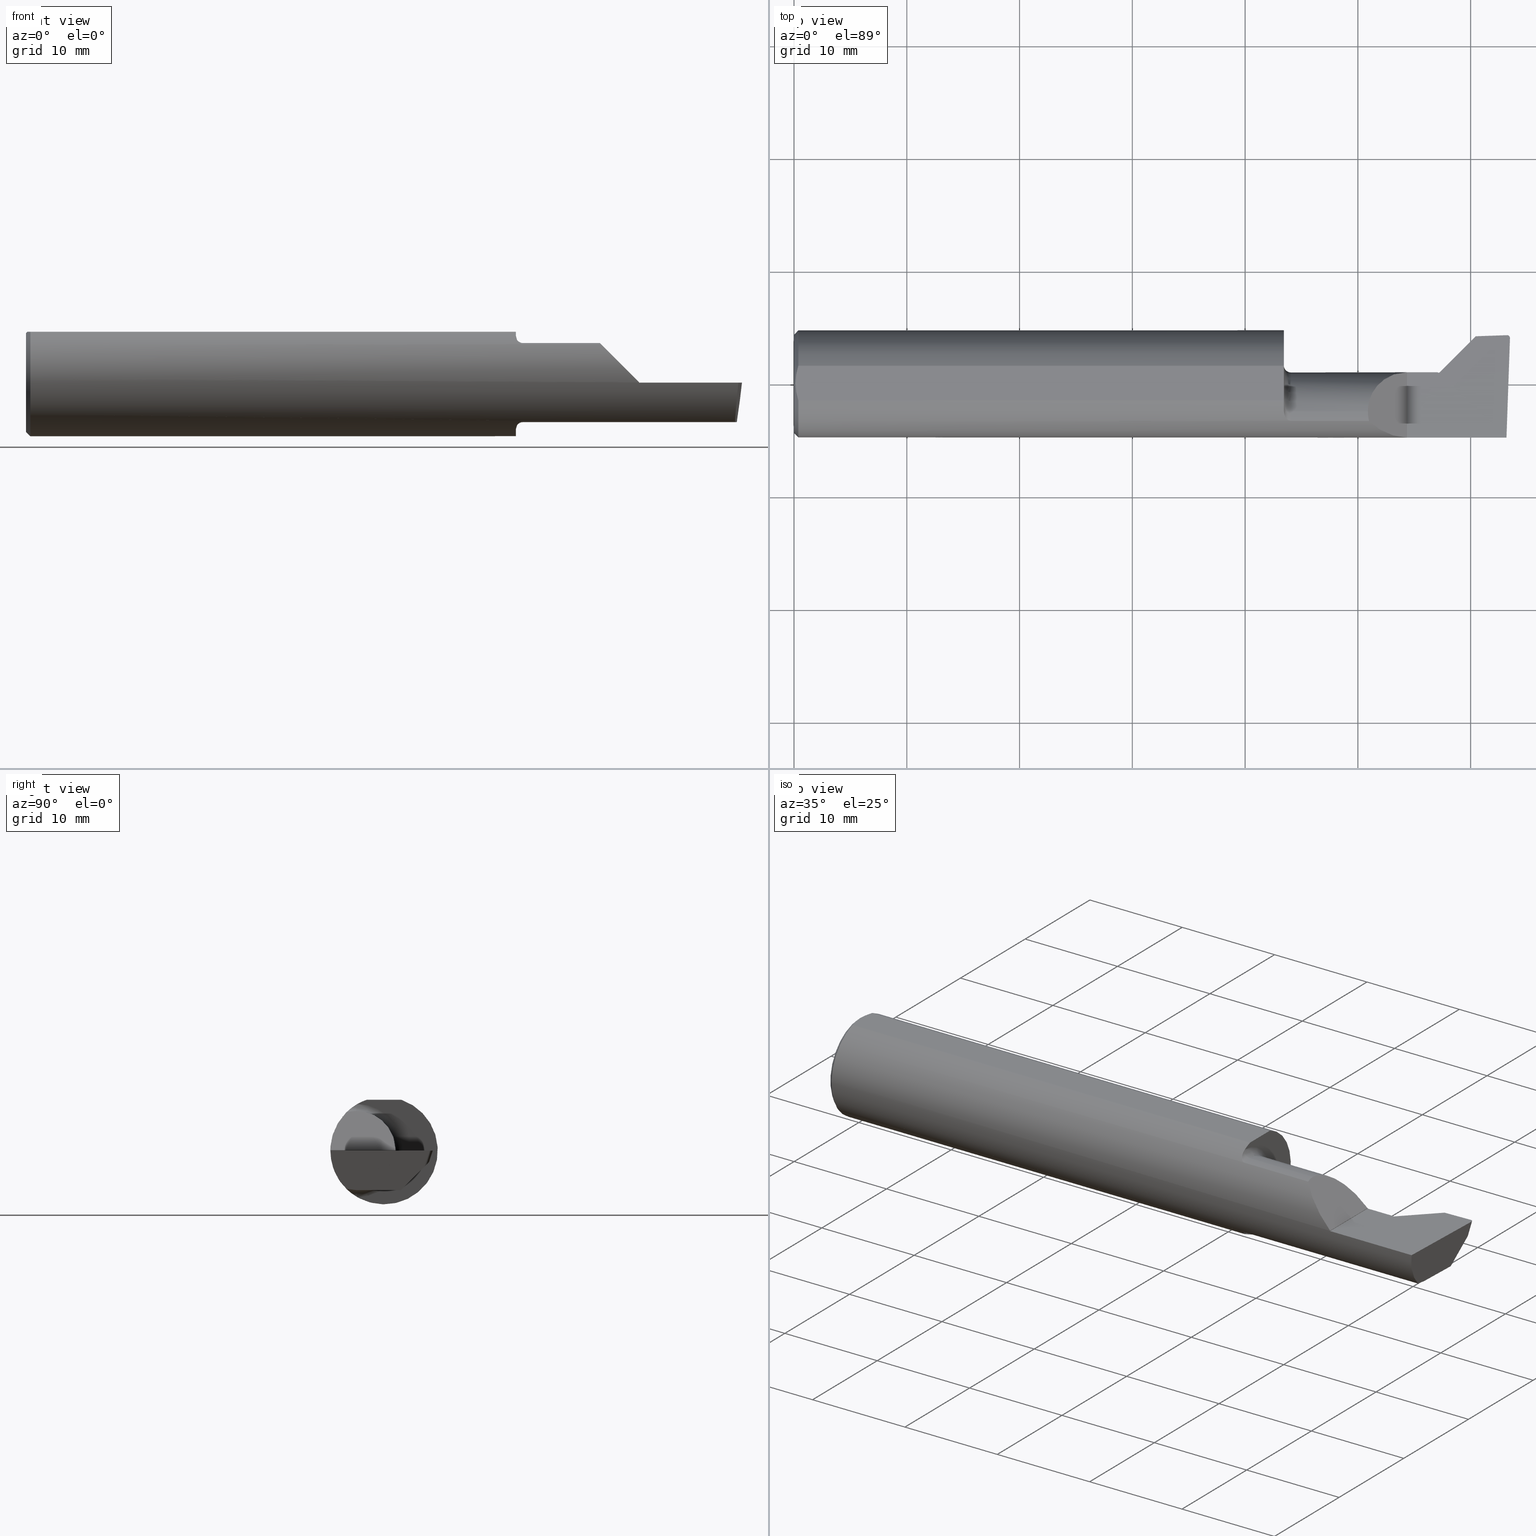
[diagram: canonical four-view strip — front | top / right | iso, engineering-drawing reading convention]
A machine part, canonical four-view strip (front | top / right | iso — engineering-drawing reading convention). The complete STEP part file that produces these views, byte-faithful:
ISO-10303-21;
HEADER;
FILE_DESCRIPTION (( 'STEP AP203' ),
    '1' );
FILE_NAME ('216852-BC360750.STEP',
    '2024-04-19T22:34:45',
    ( '' ),
    ( '' ),
    'SwSTEP 2.0',
    'SolidWorks 2022',
    '' );
FILE_SCHEMA (( 'CONFIG_CONTROL_DESIGN' ));
ENDSEC;

DATA;
#1 = ORIENTED_EDGE ( 'NONE', *, *, #332, .T. ) ;
#2 = CIRCLE ( 'NONE', #868, 0.1723499999999993371 ) ;
#3 = ORIENTED_EDGE ( 'NONE', *, *, #744, .T. ) ;
#4 = VECTOR ( 'NONE', #203, 39.37007874015748854 ) ;
#5 = CIRCLE ( 'NONE', #195, 0.1380000000000000115 ) ;
#6 = CARTESIAN_POINT ( 'NONE',  ( 2.494282959874854377, 0.1504604513405773947, -0.04698094005957075686 ) ) ;
#7 = DIRECTION ( 'NONE',  ( -1.000000000000000000, -0.000000000000000000, -0.000000000000000000 ) ) ;
#8 = CARTESIAN_POINT ( 'NONE',  ( 1.734999999999999876, -0.09734999999999999210, 0.000000000000000000 ) ) ;
#9 = ADVANCED_FACE ( 'NONE', ( #751 ), #629, .F. ) ;
#10 = CARTESIAN_POINT ( 'NONE',  ( 2.254190492339006813, -0.09734999999999999210, 0.000000000000000000 ) ) ;
#11 = ORIENTED_EDGE ( 'NONE', *, *, #207, .F. ) ;
#12 = CARTESIAN_POINT ( 'NONE',  ( 1.734999999999999876, -0.09734999999999999210, -0.1630000000000000060 ) ) ;
#13 = CARTESIAN_POINT ( 'NONE',  ( 2.007550875554935388, -0.1311404468412940838, 0.1337991244450638662 ) ) ;
#14 = CARTESIAN_POINT ( 'NONE',  ( 0.005000000000000709606, 2.171911098286578964E-17, 0.1773499999999999799 ) ) ;
#15 = ORIENTED_EDGE ( 'NONE', *, *, #309, .T. ) ;
#16 = AXIS2_PLACEMENT_3D ( 'NONE', #871, #865, #715 ) ;
#17 = CYLINDRICAL_SURFACE ( 'NONE', #141, 0.1380000000000000115 ) ;
#18 = AXIS2_PLACEMENT_3D ( 'NONE', #599, #813, #670 ) ;
#19 = CLOSED_SHELL ( 'NONE', ( #353, #877, #799, #447, #538, #604, #632, #393, #381, #622, #9, #518, #143, #498, #438, #249, #53, #157, #765, #887, #846, #724, #373, #734, #429 ) ) ;
#20 = ORIENTED_EDGE ( 'NONE', *, *, #21, .F. ) ;
#21 = EDGE_CURVE ( 'NONE', #132, #347, #51, .T. ) ;
#22 = DIRECTION ( 'NONE',  ( -0.7071067811865469066, 0.000000000000000000, 0.7071067811865480168 ) ) ;
#23 = ORIENTED_EDGE ( 'NONE', *, *, #643, .T. ) ;
#24 = CALENDAR_DATE ( 2024, 19, 4 ) ;
#25 = CARTESIAN_POINT ( 'NONE',  ( 2.256845249856878954, -0.06928717679650923944, -0.1379999999999999838 ) ) ;
#26 = ORIENTED_EDGE ( 'NONE', *, *, #218, .F. ) ;
#27 = PERSON_AND_ORGANIZATION ( #316, #162 ) ;
#28 = EDGE_CURVE ( 'NONE', #690, #673, #903, .T. ) ;
#29 = DIRECTION ( 'NONE',  ( -1.000000000000000000, -0.000000000000000000, -0.000000000000000000 ) ) ;
#30 = APPROVAL_PERSON_ORGANIZATION ( #372, #810, #784 ) ;
#31 = CARTESIAN_POINT ( 'NONE',  ( 2.499547276487123604, 0.1597567146383603032, -3.995833282175376183E-17 ) ) ;
#32 = VECTOR ( 'NONE', #196, 39.37007874015748143 ) ;
#33 = ORIENTED_EDGE ( 'NONE', *, *, #280, .T. ) ;
#34 = DIRECTION ( 'NONE',  ( -1.000000000000000000, -0.000000000000000000, -0.000000000000000000 ) ) ;
#35 = DIRECTION ( 'NONE',  ( 0.000000000000000000, 0.000000000000000000, 1.000000000000000000 ) ) ;
#36 = EDGE_CURVE ( 'NONE', #881, #189, #136, .T. ) ;
#37 = VERTEX_POINT ( 'NONE', #198 ) ;
#38 = CARTESIAN_POINT ( 'NONE',  ( 2.255774339120388383, 0.03245789015051097487, -0.05217871732339500468 ) ) ;
#39 = CARTESIAN_POINT ( 'NONE',  ( 1.709999999999999964, 0.1000000000000000056, 0.1773499999999999799 ) ) ;
#40 = VERTEX_POINT ( 'NONE', #555 ) ;
#41 = DATE_AND_TIME ( #747, #760 ) ;
#42 = CARTESIAN_POINT ( 'NONE',  ( 1.711029215009664872, -0.1047970787709735369, 0.1553588791266942715 ) ) ;
#43 = CARTESIAN_POINT ( 'NONE',  ( -0.009482166910882059221, 0.08301695170568727800, -3.995833282175376183E-17 ) ) ;
#44 = ORIENTED_EDGE ( 'NONE', *, *, #546, .T. ) ;
#45 = CARTESIAN_POINT ( 'NONE',  ( 1.734999999999999876, -0.1311404468412942781, 0.1337991244450638106 ) ) ;
#46 = EDGE_CURVE ( 'NONE', #825, #830, #127, .T. ) ;
#47 = CARTESIAN_POINT ( 'NONE',  ( 2.456545245371497543, 0.06681129821121152557, -0.2823598440252002018 ) ) ;
#48 = ORIENTED_EDGE ( 'NONE', *, *, #197, .T. ) ;
#49 = CARTESIAN_POINT ( 'NONE',  ( 1.730452406526342246, -0.1311404468412942503, 0.1337991244450638106 ) ) ;
#50 = DIRECTION ( 'NONE',  ( 0.000000000000000000, 0.9498568739707521358, -0.3126850155835914080 ) ) ;
#51 = LINE ( 'NONE', #900, #181 ) ;
#52 = CARTESIAN_POINT ( 'NONE',  ( 2.266990940629709517, 0.02165844502410793626, -0.09269528518886764601 ) ) ;
#53 = ADVANCED_FACE ( 'NONE', ( #100 ), #273, .T. ) ;
#54 = CARTESIAN_POINT ( 'NONE',  ( 2.485072144401530903, 0.1571211000538173530, -0.04000289600932369766 ) ) ;
#55 = VERTEX_POINT ( 'NONE', #445 ) ;
#56 = DIRECTION ( 'NONE',  ( 0.7071067811865507924, 0.000000000000000000, -0.7071067811865443531 ) ) ;
#57 = AXIS2_PLACEMENT_3D ( 'NONE', #592, #449, #382 ) ;
#58 = CARTESIAN_POINT ( 'NONE',  ( 0.01500000000000079568, 0.000000000000000000, 0.000000000000000000 ) ) ;
#59 = ORIENTED_EDGE ( 'NONE', *, *, #491, .T. ) ;
#60 = CC_DESIGN_PERSON_AND_ORGANIZATION_ASSIGNMENT ( #27, #650, ( #215 ) ) ;
#61 = B_SPLINE_CURVE_WITH_KNOTS ( 'NONE', 3,
 ( #182, #544, #618, #99 ),
 .UNSPECIFIED., .F., .F.,
 ( 4, 4 ),
 ( 0.001364528611307295417, 0.001508443371703145630 ),
 .UNSPECIFIED. ) ;
#62 = CARTESIAN_POINT ( 'NONE',  ( 2.247075216078055160, 0.04065000000000002639, -0.003689937909391399328 ) ) ;
#63 = DIRECTION ( 'NONE',  ( -0.1101391589757834411, -0.3107826950986318226, -0.9440781122806194414 ) ) ;
#64 = ORIENTED_EDGE ( 'NONE', *, *, #772, .T. ) ;
#65 = CARTESIAN_POINT ( 'NONE',  ( 1.982095246169503167, -0.1311404468412942781, -0.1337991244450638106 ) ) ;
#66 = CARTESIAN_POINT ( 'NONE',  ( 2.254190492339006813, -0.09734999999999999210, -0.1380000000000000115 ) ) ;
#67 = DIRECTION ( 'NONE',  ( -1.000000000000000000, 0.000000000000000000, -0.000000000000000000 ) ) ;
#68 = DIRECTION ( 'NONE',  ( 0.000000000000000000, -1.000000000000000000, 0.000000000000000000 ) ) ;
#69 = CARTESIAN_POINT ( 'NONE',  ( 1.726294583745172417, -0.1292895268799785224, -0.1356266009839739717 ) ) ;
#70 = EDGE_CURVE ( 'NONE', #690, #37, #593, .T. ) ;
#71 = VECTOR ( 'NONE', #536, 39.37007874015748143 ) ;
#72 = VECTOR ( 'NONE', #675, 39.37007874015748854 ) ;
#73 = CARTESIAN_POINT ( 'NONE',  ( 2.320694845122096339, 0.05579781248120305875, -0.1355277751586456969 ) ) ;
#74 = VERTEX_POINT ( 'NONE', #231 ) ;
#75 = CARTESIAN_POINT ( 'NONE',  ( 2.290216614758732838, 0.004623877580273364277, -0.1901428791907623095 ) ) ;
#76 = CARTESIAN_POINT ( 'NONE',  ( 2.456545245371497543, 0.07630986695091904193, -0.2854866941810361158 ) ) ;
#77 =( BOUNDED_CURVE ( )  B_SPLINE_CURVE ( 3, ( #359, #496, #389, #137 ),
 .UNSPECIFIED., .F., .T. ) 
 B_SPLINE_CURVE_WITH_KNOTS ( ( 4, 4 ),
 ( 4.719594807355369959, 5.507821840945790193 ),
 .UNSPECIFIED. ) 
 CURVE ( )  GEOMETRIC_REPRESENTATION_ITEM ( )  RATIONAL_B_SPLINE_CURVE ( ( 1.000000000000000000, 0.9488915517635598817, 0.9488915517635598817, 1.000000000000000000 ) ) 
 REPRESENTATION_ITEM ( '' )  );
#78 = ORIENTED_EDGE ( 'NONE', *, *, #227, .F. ) ;
#79 = PERSON_AND_ORGANIZATION_ROLE ( 'creator' ) ;
#80 = DIRECTION ( 'NONE',  ( 0.9993908270190960952, 0.03489949670248734814, 0.000000000000000000 ) ) ;
#81 = ORIENTED_EDGE ( 'NONE', *, *, #36, .T. ) ;
#82 = CARTESIAN_POINT ( 'NONE',  ( 1.710172072388448372, -0.09734999999999999210, -0.1600718588634491846 ) ) ;
#83 = CIRCLE ( 'NONE', #588, 0.02500000000000000486 ) ;
#84 = CARTESIAN_POINT ( 'NONE',  ( 2.499929687538754219, -0.09734999999999999210, -0.1380000000000000115 ) ) ;
#85 = AXIS2_PLACEMENT_3D ( 'NONE', #850, #909, #131 ) ;
#86 = AXIS2_PLACEMENT_3D ( 'NONE', #430, #501, #851 ) ;
#87 = ORIENTED_EDGE ( 'NONE', *, *, #477, .F. ) ;
#88 = MECHANICAL_CONTEXT ( 'NONE', #735, 'mechanical' ) ;
#89 = CARTESIAN_POINT ( 'NONE',  ( 2.254190492339006813, -0.09029250758091665607, -0.1380000000000000115 ) ) ;
#90 = VERTEX_POINT ( 'NONE', #667 ) ;
#91 =( NAMED_UNIT ( * ) SI_UNIT ( $, .STERADIAN. ) SOLID_ANGLE_UNIT ( ) );
#92 = CARTESIAN_POINT ( 'NONE',  ( 2.289114887273932641, 0.007239004772318141136, -0.1380000000000000115 ) ) ;
#93 = CARTESIAN_POINT ( 'NONE',  ( 1.734999999999999876, -0.09734999999999999210, 0.000000000000000000 ) ) ;
#94 = ORIENTED_EDGE ( 'NONE', *, *, #684, .T. ) ;
#95 = CARTESIAN_POINT ( 'NONE',  ( 2.489514839073209362, 0.1702838501121917980, -3.995833282175376183E-17 ) ) ;
#96 = CARTESIAN_POINT ( 'NONE',  ( -0.005608434879347946704, -0.02791221989950442781, -0.1380000000000000115 ) ) ;
#97 = CARTESIAN_POINT ( 'NONE',  ( 1.734999999999999876, -0.09734999999999999210, 0.1380000000000000115 ) ) ;
#98 = ORIENTED_EDGE ( 'NONE', *, *, #814, .T. ) ;
#99 = CARTESIAN_POINT ( 'NONE',  ( 1.709999999999999964, -0.09249124293785307427, 0.1629275682007530479 ) ) ;
#100 = FACE_OUTER_BOUND ( 'NONE', #506, .T. ) ;
#101 = VERTEX_POINT ( 'NONE', #880 ) ;
#102 = B_SPLINE_CURVE_WITH_KNOTS ( 'NONE', 3,
 ( #768, #771, #554, #421, #701, #572, #140, #69, #833, #192 ),
 .UNSPECIFIED., .F., .F.,
 ( 4, 2, 2, 2, 4 ),
 ( 0.0001420933061485390113, 0.0004789126879048844886, 0.0008157320696612292612, 0.001152551451417574034, 0.001489370833173918589 ),
 .UNSPECIFIED. ) ;
#103 = CARTESIAN_POINT ( 'NONE',  ( 2.254190492339006369, 0.03387284077112010655, -0.04271493954060175124 ) ) ;
#104 = DIRECTION ( 'NONE',  ( 1.000000000000000000, 0.000000000000000000, 0.000000000000000000 ) ) ;
#105 = ORIENTED_EDGE ( 'NONE', *, *, #118, .T. ) ;
#106 = PERSON_AND_ORGANIZATION_ROLE ( 'classification_officer' ) ;
#107 = EDGE_CURVE ( 'NONE', #705, #825, #290, .T. ) ;
#108 = CARTESIAN_POINT ( 'NONE',  ( 2.257618129540837515, 0.03037013874088575691, -0.06141450311055729472 ) ) ;
#109 =( BOUNDED_CURVE ( )  B_SPLINE_CURVE ( 3, ( #693, #707, #776, #13 ),
 .UNSPECIFIED., .F., .T. ) 
 B_SPLINE_CURVE_WITH_KNOTS ( ( 4, 4 ),
 ( 0.000000000000000000, 0.2473735516701110748 ),
 .UNSPECIFIED. ) 
 CURVE ( )  GEOMETRIC_REPRESENTATION_ITEM ( )  RATIONAL_B_SPLINE_CURVE ( ( 1.000000000000000000, 0.9949070250026434969, 0.9949070250026434969, 1.000000000000000000 ) ) 
 REPRESENTATION_ITEM ( '' )  );
#110 = PLANE ( 'NONE',  #385 ) ;
#111 = ORIENTED_EDGE ( 'NONE', *, *, #829, .T. ) ;
#112 = APPROVAL_DATE_TIME ( #41, #582 ) ;
#113 = AXIS2_PLACEMENT_3D ( 'NONE', #47, #253, #50 ) ;
#114 = VECTOR ( 'NONE', #815, 39.37007874015748143 ) ;
#115 = CARTESIAN_POINT ( 'NONE',  ( 1.726325522743619612, -0.1293101261180931161, 0.1356073261687018583 ) ) ;
#116 = CARTESIAN_POINT ( 'NONE',  ( 2.320621603346205042, 0.05497127617536411159, -0.1363512518597831957 ) ) ;
#117 = DIRECTION ( 'NONE',  ( -0.000000000000000000, 0.000000000000000000, 1.000000000000000000 ) ) ;
#118 = EDGE_CURVE ( 'NONE', #552, #199, #164, .T. ) ;
#119 = PLANE ( 'NONE',  #591 ) ;
#120 = DIRECTION ( 'NONE',  ( -1.000000000000000000, 0.000000000000000000, 0.000000000000000000 ) ) ;
#121 = ORIENTED_EDGE ( 'NONE', *, *, #455, .T. ) ;
#122 = DIRECTION ( 'NONE',  ( 0.000000000000000000, -0.7073221891495887759, -0.7068913075831625425 ) ) ;
#123 = PLANE ( 'NONE',  #561 ) ;
#124 = ORIENTED_EDGE ( 'NONE', *, *, #21, .T. ) ;
#125 = CARTESIAN_POINT ( 'NONE',  ( 2.247510898166464433, 0.04050167505455123940, -0.007369005601599101785 ) ) ;
#126 = VECTOR ( 'NONE', #817, 39.37007874015748143 ) ;
#127 = CIRCLE ( 'NONE', #242, 0.1873499999999999888 ) ;
#128 = CARTESIAN_POINT ( 'NONE',  ( 1.710057535043917776, -0.09575311144940619468, -0.1610430295708058512 ) ) ;
#129 = ORIENTED_EDGE ( 'NONE', *, *, #789, .T. ) ;
#130 = DIRECTION ( 'NONE',  ( -1.000000000000000000, -0.000000000000000000, -0.000000000000000000 ) ) ;
#131 = DIRECTION ( 'NONE',  ( 0.000000000000000000, 0.000000000000000000, -1.000000000000000000 ) ) ;
#132 = VERTEX_POINT ( 'NONE', #73 ) ;
#133 = EDGE_CURVE ( 'NONE', #617, #727, #581, .T. ) ;
#134 = PLANE ( 'NONE',  #397 ) ;
#135 = CARTESIAN_POINT ( 'NONE',  ( 2.140000000000000124, 0.2500000000000000000, -3.995833282175376183E-17 ) ) ;
#136 =( BOUNDED_CURVE ( )  B_SPLINE_CURVE ( 3, ( #184, #475, #6, #842 ),
 .UNSPECIFIED., .F., .T. ) 
 B_SPLINE_CURVE_WITH_KNOTS ( ( 4, 4 ),
 ( 3.113460290453720081, 4.684741570447443770 ),
 .UNSPECIFIED. ) 
 CURVE ( )  GEOMETRIC_REPRESENTATION_ITEM ( )  RATIONAL_B_SPLINE_CURVE ( ( 1.000000000000000000, 0.8046235357022444301, 0.8046235357022444301, 1.000000000000000000 ) ) 
 REPRESENTATION_ITEM ( '' )  );
#137 = CARTESIAN_POINT ( 'NONE',  ( 2.007550875554935388, -0.1311404468412940838, 0.1337991244450638662 ) ) ;
#138 = ORIENTED_EDGE ( 'NONE', *, *, #400, .T. ) ;
#139 = LINE ( 'NONE', #75, #4 ) ;
#140 = CARTESIAN_POINT ( 'NONE',  ( 1.720171544730495494, -0.1245604422915962822, -0.1399823305686709596 ) ) ;
#141 = AXIS2_PLACEMENT_3D ( 'NONE', #860, #509, #785 ) ;
#142 = CARTESIAN_POINT ( 'NONE',  ( 0.005000000000000708739, -0.02074845265125293062, 0.1773499999999999799 ) ) ;
#143 = ADVANCED_FACE ( 'NONE', ( #281 ), #587, .F. ) ;
#144 = ORIENTED_EDGE ( 'NONE', *, *, #652, .T. ) ;
#145 = APPROVAL_STATUS ( 'not_yet_approved' ) ;
#146 = DIRECTION ( 'NONE',  ( -0.05299028827208342174, 0.3070789098185116028, 0.9502076470401170649 ) ) ;
#147 = ORIENTED_EDGE ( 'NONE', *, *, #781, .T. ) ;
#148 = FACE_OUTER_BOUND ( 'NONE', #243, .T. ) ;
#149 = FACE_OUTER_BOUND ( 'NONE', #492, .T. ) ;
#150 = ORIENTED_EDGE ( 'NONE', *, *, #574, .F. ) ;
#151 = CARTESIAN_POINT ( 'NONE',  ( 2.499929687538754219, -0.09734999999999999210, -0.1380000000000000115 ) ) ;
#152 = CARTESIAN_POINT ( 'NONE',  ( 2.312231447341378754, 0.04209708851876111518, -0.1380000000000000115 ) ) ;
#153 = AXIS2_PLACEMENT_3D ( 'NONE', #349, #637, #780 ) ;
#154 = VERTEX_POINT ( 'NONE', #97 ) ;
#155 = CARTESIAN_POINT ( 'NONE',  ( 0.01500000000000079568, 2.294375778202566330E-17, 0.1873499999999999888 ) ) ;
#156 = ORIENTED_EDGE ( 'NONE', *, *, #311, .T. ) ;
#157 = ADVANCED_FACE ( 'NONE', ( #236 ), #773, .T. ) ;
#158 = CARTESIAN_POINT ( 'NONE',  ( 2.254190492339006813, -0.09734999999999999210, 0.000000000000000000 ) ) ;
#159 = CARTESIAN_POINT ( 'NONE',  ( 2.500000000000000000, 0.06039039658753697637, 0.1773499999999999799 ) ) ;
#160 = ORIENTED_EDGE ( 'NONE', *, *, #820, .T. ) ;
#161 = PERSON_AND_ORGANIZATION ( #316, #162 ) ;
#162 = ORGANIZATION ( 'UNSPECIFIED', 'UNSPECIFIED', '' ) ;
#163 = CARTESIAN_POINT ( 'NONE',  ( 2.502269346801005767, 0.2372795919200243187, -3.995833282175376183E-17 ) ) ;
#164 = LINE ( 'NONE', #726, #357 ) ;
#165 = CIRCLE ( 'NONE', #225, 0.1380000000000000115 ) ;
#166 = EDGE_LOOP ( 'NONE', ( #394, #423, #766, #147, #786 ) ) ;
#167 = PERSON_AND_ORGANIZATION ( #316, #162 ) ;
#168 = DIRECTION ( 'NONE',  ( 0.6830127018922175219, -0.6830127018922259596, 0.2588190451025079164 ) ) ;
#169 = CARTESIAN_POINT ( 'NONE',  ( 2.274006400782963677, 0.02083409155604262417, -0.1045867174217852552 ) ) ;
#170 = ORIENTED_EDGE ( 'NONE', *, *, #407, .T. ) ;
#171 = CALENDAR_DATE ( 2024, 19, 4 ) ;
#172 = CARTESIAN_POINT ( 'NONE',  ( 1.712932850456038825, -0.1118695716474058660, 0.1503462935421367164 ) ) ;
#173 = DIRECTION ( 'NONE',  ( 0.000000000000000000, 0.000000000000000000, 1.000000000000000000 ) ) ;
#174 = ORIENTED_EDGE ( 'NONE', *, *, #875, .F. ) ;
#175 = CARTESIAN_POINT ( 'NONE',  ( 2.269081320469313656, 0.02084657161544854406, -0.09698028554672970258 ) ) ;
#176 = FACE_OUTER_BOUND ( 'NONE', #390, .T. ) ;
#177 = EDGE_CURVE ( 'NONE', #676, #685, #5, .T. ) ;
#178 = ORIENTED_EDGE ( 'NONE', *, *, #383, .F. ) ;
#179 = SECURITY_CLASSIFICATION_LEVEL ( 'unclassified' ) ;
#180 = AXIS2_PLACEMENT_3D ( 'NONE', #463, #666, #740 ) ;
#181 = VECTOR ( 'NONE', #634, 39.37007874015748854 ) ;
#182 = CARTESIAN_POINT ( 'NONE',  ( 1.710172072388448372, -0.09734999999999999210, 0.1600718588634492123 ) ) ;
#183 = CARTESIAN_POINT ( 'NONE',  ( 0.000000000000000000, 0.1000000000000000056, 0.1773499999999999799 ) ) ;
#184 = CARTESIAN_POINT ( 'NONE',  ( 2.485183491383149867, 0.1571191936351356011, -0.04000868722028459029 ) ) ;
#185 = ORIENTED_EDGE ( 'NONE', *, *, #70, .T. ) ;
#186 = CARTESIAN_POINT ( 'NONE',  ( 0.01500000000000079568, 0.000000000000000000, -0.1873499999999999888 ) ) ;
#187 = EDGE_CURVE ( 'NONE', #90, #40, #720, .T. ) ;
#188 = CARTESIAN_POINT ( 'NONE',  ( 2.475364900949933222, -0.1200794343651744034, -0.1365925399897124637 ) ) ;
#189 = VERTEX_POINT ( 'NONE', #224 ) ;
#190 = ORIENTED_EDGE ( 'NONE', *, *, #853, .T. ) ;
#191 = CARTESIAN_POINT ( 'NONE',  ( 2.249136602845993593, 0.03948438140184417494, -0.01825776490443359670 ) ) ;
#192 = CARTESIAN_POINT ( 'NONE',  ( 1.734999999999999876, -0.1311404468412942781, -0.1337991244450638106 ) ) ;
#193 = ORIENTED_EDGE ( 'NONE', *, *, #460, .F. ) ;
#194 = CARTESIAN_POINT ( 'NONE',  ( 2.250706592715763676, 0.03922129936899983876, -3.414809992080329023E-17 ) ) ;
#195 = AXIS2_PLACEMENT_3D ( 'NONE', #93, #638, #778 ) ;
#196 = DIRECTION ( 'NONE',  ( -0.000000000000000000, 1.000000000000000000, -0.000000000000000000 ) ) ;
#197 = EDGE_CURVE ( 'NONE', #132, #514, #454, .T. ) ;
#198 = CARTESIAN_POINT ( 'NONE',  ( 2.140000000000000124, -0.1873451360457484560, 0.001349999999999188004 ) ) ;
#199 = VERTEX_POINT ( 'NONE', #519 ) ;
#200 = DIRECTION ( 'NONE',  ( -1.000000000000000000, -0.000000000000000000, -0.000000000000000000 ) ) ;
#201 = DIRECTION ( 'NONE',  ( 1.000000000000000000, -0.000000000000000000, -0.000000000000000000 ) ) ;
#202 = DIRECTION ( 'NONE',  ( 0.000000000000000000, 0.000000000000000000, -1.000000000000000000 ) ) ;
#203 = DIRECTION ( 'NONE',  ( -0.1830127018922091675, 0.1830127018922112492, 0.9659258262890716429 ) ) ;
#204 = CARTESIAN_POINT ( 'NONE',  ( 1.709999999999999964, -0.09249124293785307427, -0.1629275682007530479 ) ) ;
#205 = PRODUCT_RELATED_PRODUCT_CATEGORY ( 'detail', '', ( #215 ) ) ;
#206 = CARTESIAN_POINT ( 'NONE',  ( 0.008696589530556733325, -0.04083523520126734058, 0.1773499999999999799 ) ) ;
#207 = EDGE_CURVE ( 'NONE', #37, #101, #77, .T. ) ;
#208 = ORIENTED_EDGE ( 'NONE', *, *, #574, .T. ) ;
#209 = DIRECTION ( 'NONE',  ( 1.000000000000000000, 0.000000000000000000, 0.000000000000000000 ) ) ;
#210 = CARTESIAN_POINT ( 'NONE',  ( 2.380000000000000338, 0.1664595076609918789, -4.001730459469135844E-17 ) ) ;
#211 = AXIS2_PLACEMENT_3D ( 'NONE', #558, #417, #495 ) ;
#212 = ORIENTED_EDGE ( 'NONE', *, *, #652, .F. ) ;
#213 = LENGTH_MEASURE_WITH_UNIT ( LENGTH_MEASURE( 0.02539999999999999897 ), #294 );
#214 = CARTESIAN_POINT ( 'NONE',  ( 1.710172072388448372, -0.09734999999999999210, 0.1600718588634492123 ) ) ;
#215 = PRODUCT ( '216852-BC360750', '216852-BC360750', '', ( #88 ) ) ;
#216 = EDGE_LOOP ( 'NONE', ( #861, #105, #287, #896 ) ) ;
#217 = B_SPLINE_CURVE_WITH_KNOTS ( 'NONE', 3,
 ( #175, #52, #897, #609, #258, #108, #38, #103 ),
 .UNSPECIFIED., .F., .F.,
 ( 4, 2, 2, 4 ),
 ( 0.003145030686131764733, 0.003520949390001448017, 0.003896868093871131301, 0.004648705501610498302 ),
 .UNSPECIFIED. ) ;
#218 = EDGE_CURVE ( 'NONE', #804, #705, #832, .T. ) ;
#219 = CARTESIAN_POINT ( 'NONE',  ( 2.258423646717506283, -0.06231060379076364814, -0.1380000000000000115 ) ) ;
#220 = VERTEX_POINT ( 'NONE', #703 ) ;
#221 = CARTESIAN_POINT ( 'NONE',  ( 2.485183491383149867, 0.1571191936351356011, -0.04000868722028459029 ) ) ;
#222 = LOCAL_TIME ( 15, 34, 45.00000000000000000, #612 ) ;
#223 = CARTESIAN_POINT ( 'NONE',  ( 2.320505660128782566, 0.05331747422374848167, -0.1380000000000000115 ) ) ;
#224 = CARTESIAN_POINT ( 'NONE',  ( 2.493002116402539770, 0.1412880563531996037, -0.05610304667921357791 ) ) ;
#225 = AXIS2_PLACEMENT_3D ( 'NONE', #630, #279, #274 ) ;
#226 = VECTOR ( 'NONE', #317, 39.37007874015748854 ) ;
#227 = EDGE_CURVE ( 'NONE', #520, #583, #298, .T. ) ;
#228 = ORIENTED_EDGE ( 'NONE', *, *, #510, .F. ) ;
#229 = PLANE ( 'NONE',  #286 ) ;
#230 = CARTESIAN_POINT ( 'NONE',  ( 2.271630647765708666, 0.02023256765745936811, -0.1016674294439931375 ) ) ;
#231 = CARTESIAN_POINT ( 'NONE',  ( 0.000000000000000000, 2.202527268266510421E-17, 0.1723499999999993371 ) ) ;
#232 = DIMENSIONAL_EXPONENTS ( 1.000000000000000000, 0.000000000000000000, 0.000000000000000000, 0.000000000000000000, 0.000000000000000000, 0.000000000000000000, 0.000000000000000000 ) ;
#233 = ORIENTED_EDGE ( 'NONE', *, *, #704, .T. ) ;
#234 = COORDINATED_UNIVERSAL_TIME_OFFSET ( 8, 0, .BEHIND. ) ;
#235 = DIRECTION ( 'NONE',  ( -0.9993908270190960952, -0.03489949670248749386, 0.000000000000000000 ) ) ;
#236 = FACE_OUTER_BOUND ( 'NONE', #166, .T. ) ;
#237 = EDGE_CURVE ( 'NONE', #804, #220, #378, .T. ) ;
#238 = ORIENTED_EDGE ( 'NONE', *, *, #895, .T. ) ;
#239 = CARTESIAN_POINT ( 'NONE',  ( 2.003349999999999742, -0.09734999999999999210, 0.1380000000000000115 ) ) ;
#240 = CARTESIAN_POINT ( 'NONE',  ( 2.453135373064774249, 0.02879496983852520772, -0.3978281891543736792 ) ) ;
#241 = VECTOR ( 'NONE', #808, 39.37007874015748854 ) ;
#242 = AXIS2_PLACEMENT_3D ( 'NONE', #834, #769, #419 ) ;
#243 = EDGE_LOOP ( 'NONE', ( #44, #645, #901, #800 ) ) ;
#244 = PLANE ( 'NONE',  #605 ) ;
#245 = DIRECTION ( 'NONE',  ( -0.1830127018922091675, 0.1830127018922112492, 0.9659258262890716429 ) ) ;
#246 = EDGE_LOOP ( 'NONE', ( #333, #326, #64, #511 ) ) ;
#247 = PERSON_AND_ORGANIZATION_ROLE ( 'creator' ) ;
#248 = LINE ( 'NONE', #540, #126 ) ;
#249 = ADVANCED_FACE ( 'NONE', ( #176 ), #461, .T. ) ;
#250 = DIRECTION ( 'NONE',  ( 1.000000000000000000, 0.000000000000000000, 0.000000000000000000 ) ) ;
#251 = ORIENTED_EDGE ( 'NONE', *, *, #133, .T. ) ;
#252 = CARTESIAN_POINT ( 'NONE',  ( 0.005000000000000709606, 2.171911098286578964E-17, 0.1773499999999999799 ) ) ;
#253 = DIRECTION ( 'NONE',  ( -0.1101391589757834411, -0.3107826950986318226, -0.9440781122806194414 ) ) ;
#254 = ORIENTED_EDGE ( 'NONE', *, *, #575, .T. ) ;
#255 = EDGE_CURVE ( 'NONE', #220, #90, #392, .T. ) ;
#256 = AXIS2_PLACEMENT_3D ( 'NONE', #797, #712, #22 ) ;
#257 = ORIENTED_EDGE ( 'NONE', *, *, #565, .T. ) ;
#258 = CARTESIAN_POINT ( 'NONE',  ( 2.261054223371954830, 0.02669063876849315717, -0.07496679344647207144 ) ) ;
#259 = DIRECTION ( 'NONE',  ( 0.000000000000000000, -0.3091873523091452913, -0.9510011467774686089 ) ) ;
#260 =( BOUNDED_CURVE ( )  B_SPLINE_CURVE ( 3, ( #741, #532, #54, #683 ),
 .UNSPECIFIED., .F., .F. ) 
 B_SPLINE_CURVE_WITH_KNOTS ( ( 4, 4 ),
 ( 3.080059520050154820, 3.113460290453720081 ),
 .UNSPECIFIED. ) 
 CURVE ( )  GEOMETRIC_REPRESENTATION_ITEM ( )  RATIONAL_B_SPLINE_CURVE ( ( 1.000000000000000000, 0.9999070345387619518, 0.9999070345387619518, 1.000000000000000000 ) ) 
 REPRESENTATION_ITEM ( '' )  );
#261 = VERTEX_POINT ( 'NONE', #610 ) ;
#262 = ORIENTED_EDGE ( 'NONE', *, *, #706, .F. ) ;
#263 = CARTESIAN_POINT ( 'NONE',  ( 2.251068696518590428, 0.03777472066843270970, -0.02893588630058534575 ) ) ;
#264 = DIRECTION ( 'NONE',  ( -1.000000000000000000, -0.000000000000000000, -0.000000000000000000 ) ) ;
#265 = CARTESIAN_POINT ( 'NONE',  ( 2.003349999999999742, -0.09734999999999999210, 0.1380000000000000115 ) ) ;
#266 = MANIFOLD_SOLID_BREP ( 'Fillet1', #19 ) ;
#267 = CARTESIAN_POINT ( 'NONE',  ( 2.247123671710010040, 0.04065000000000002639, -4.132578237514670657E-17 ) ) ;
#268 = FACE_OUTER_BOUND ( 'NONE', #843, .T. ) ;
#269 = EDGE_CURVE ( 'NONE', #514, #199, #600, .T. ) ;
#270 = ORIENTED_EDGE ( 'NONE', *, *, #280, .F. ) ;
#271 = DIRECTION ( 'NONE',  ( 0.000000000000000000, -0.9825200508486997553, 0.1861567878973753587 ) ) ;
#272 = CIRCLE ( 'NONE', #889, 0.1873499999999999888 ) ;
#273 = CONICAL_SURFACE ( 'NONE', #764, 0.1380000000000000115, 0.7853981633974426169 ) ;
#274 = DIRECTION ( 'NONE',  ( 0.000000000000000000, 0.000000000000000000, 1.000000000000000000 ) ) ;
#275 = CARTESIAN_POINT ( 'NONE',  ( 2.140000000000000124, 0.2500000000000000000, 0.001349999999999188004 ) ) ;
#276 = EDGE_LOOP ( 'NONE', ( #579, #660, #848, #542 ) ) ;
#277 = CARTESIAN_POINT ( 'NONE',  ( 2.250706592715763676, 0.03922129936899983876, -3.414809992080329023E-17 ) ) ;
#278 = CC_DESIGN_PERSON_AND_ORGANIZATION_ASSIGNMENT ( #677, #106, ( #745 ) ) ;
#279 = DIRECTION ( 'NONE',  ( -1.000000000000000000, -0.000000000000000000, -0.000000000000000000 ) ) ;
#280 = EDGE_CURVE ( 'NONE', #261, #101, #894, .T. ) ;
#281 = FACE_OUTER_BOUND ( 'NONE', #611, .T. ) ;
#282 = ORIENTED_EDGE ( 'NONE', *, *, #556, .T. ) ;
#283 = CARTESIAN_POINT ( 'NONE',  ( 0.01500000000000079568, 0.06039039658753697637, 0.1773499999999999799 ) ) ;
#284 = LINE ( 'NONE', #362, #633 ) ;
#285 = LOCAL_TIME ( 15, 34, 45.00000000000000000, #654 ) ;
#286 = AXIS2_PLACEMENT_3D ( 'NONE', #151, #303, #443 ) ;
#287 = ORIENTED_EDGE ( 'NONE', *, *, #269, .F. ) ;
#288 = VECTOR ( 'NONE', #879, 39.37007874015748143 ) ;
#289 = CARTESIAN_POINT ( 'NONE',  ( 2.269742722854997119, 0.02058969245923687741, -0.09833607237821605229 ) ) ;
#290 = B_SPLINE_CURVE_WITH_KNOTS ( 'NONE', 3,
 ( #300, #142, #206, #568 ),
 .UNSPECIFIED., .F., .F.,
 ( 4, 4 ),
 ( 0.005540749947065454900, 0.007089657205383107300 ),
 .UNSPECIFIED. ) ;
#291 = CIRCLE ( 'NONE', #456, 0.1630000000000000060 ) ;
#292 = EDGE_CURVE ( 'NONE', #837, #727, #404, .T. ) ;
#293 = EDGE_LOOP ( 'NONE', ( #150, #858, #160, #405, #828 ) ) ;
#294 =( LENGTH_UNIT ( ) NAMED_UNIT ( * ) SI_UNIT ( $, .METRE. ) );
#295 = CARTESIAN_POINT ( 'NONE',  ( 2.269651701893285800, -0.02937854321701868082, -0.1379999999999999560 ) ) ;
#296 = ORIENTED_EDGE ( 'NONE', *, *, #187, .T. ) ;
#297 = CARTESIAN_POINT ( 'NONE',  ( 2.477744795845966852, -0.1675850160254852284, -0.09807873309290965347 ) ) ;
#298 =( BOUNDED_CURVE ( )  B_SPLINE_CURVE ( 3, ( #31, #305, #522, #798 ),
 .UNSPECIFIED., .F., .T. ) 
 B_SPLINE_CURVE_WITH_KNOTS ( ( 4, 4 ),
 ( 1.893178574692891969, 3.464459854686629203 ),
 .UNSPECIFIED. ) 
 CURVE ( )  GEOMETRIC_REPRESENTATION_ITEM ( )  RATIONAL_B_SPLINE_CURVE ( ( 1.000000000000000000, 0.8046235357022412105, 0.8046235357022412105, 1.000000000000000000 ) ) 
 REPRESENTATION_ITEM ( '' )  );
#299 = PLANE ( 'NONE',  #256 ) ;
#300 = CARTESIAN_POINT ( 'NONE',  ( 0.005000000000000709606, 2.171911098286578964E-17, 0.1773499999999999799 ) ) ;
#301 = EDGE_CURVE ( 'NONE', #616, #694, #615, .T. ) ;
#302 = VERTEX_POINT ( 'NONE', #323 ) ;
#303 = DIRECTION ( 'NONE',  ( 0.000000000000000000, 0.000000000000000000, 1.000000000000000000 ) ) ;
#304 = DIRECTION ( 'NONE',  ( 0.000000000000000000, 0.000000000000000000, 1.000000000000000000 ) ) ;
#305 = CARTESIAN_POINT ( 'NONE',  ( 2.499763905952030463, 0.1659261876817253178, -3.414809992080328407E-17 ) ) ;
#306 = AXIS2_PLACEMENT_3D ( 'NONE', #478, #826, #640 ) ;
#307 = ORIENTED_EDGE ( 'NONE', *, *, #659, .F. ) ;
#308 = CARTESIAN_POINT ( 'NONE',  ( 2.273455645441968986, 0.02042164568604103170, -0.1042217244767204287 ) ) ;
#309 = EDGE_CURVE ( 'NONE', #189, #520, #884, .T. ) ;
#310 = DIRECTION ( 'NONE',  ( 1.000000000000000000, 0.000000000000000000, 0.000000000000000000 ) ) ;
#311 = EDGE_CURVE ( 'NONE', #199, #881, #260, .T. ) ;
#312 = EDGE_LOOP ( 'NONE', ( #481, #756, #439 ) ) ;
#313 = APPROVAL_STATUS ( 'not_yet_approved' ) ;
#314 = B_SPLINE_CURVE_WITH_KNOTS ( 'NONE', 3,
 ( #757, #483, #263, #191, #692, #125, #62, #697 ),
 .UNSPECIFIED., .F., .F.,
 ( 4, 2, 2, 4 ),
 ( 0.0006220927652952137898, 0.001181009902694864829, 0.001460468471394690349, 0.001739927040094515868 ),
 .UNSPECIFIED. ) ;
#315 = LINE ( 'NONE', #530, #763 ) ;
#316 = PERSON ( 'UNSPECIFIED', 'UNSPECIFIED', 'UNSPECIFIED', ('UNSPECIFIED'), ('UNSPECIFIED'), ('UNSPECIFIED') ) ;
#317 = DIRECTION ( 'NONE',  ( 0.9993908270190960952, 0.03489949670248750080, -0.000000000000000000 ) ) ;
#318 = ORIENTED_EDGE ( 'NONE', *, *, #525, .F. ) ;
#319 = APPROVAL_PERSON_ORGANIZATION ( #167, #845, #608 ) ;
#320 = CARTESIAN_POINT ( 'NONE',  ( 1.710443608118506376, -0.1011357722316141433, 0.1577694871076364969 ) ) ;
#321 = AXIS2_PLACEMENT_3D ( 'NONE', #831, #420, #361 ) ;
#322 = PRODUCT_DEFINITION ( 'UNKNOWN', '', #573, #560 ) ;
#323 = CARTESIAN_POINT ( 'NONE',  ( 2.140000000000000124, -0.1873499999999999888, -3.995833282175376183E-17 ) ) ;
#324 = VECTOR ( 'NONE', #80, 39.37007874015748854 ) ;
#325 = VECTOR ( 'NONE', #737, 39.37007874015748854 ) ;
#326 = ORIENTED_EDGE ( 'NONE', *, *, #659, .T. ) ;
#327 = CARTESIAN_POINT ( 'NONE',  ( 2.140000000000000124, 0.2500000000000000000, -3.995833282175376183E-17 ) ) ;
#328 = FACE_OUTER_BOUND ( 'NONE', #816, .T. ) ;
#329 = ORIENTED_EDGE ( 'NONE', *, *, #309, .F. ) ;
#330 = DIRECTION ( 'NONE',  ( -1.000000000000000000, -0.000000000000000000, -0.000000000000000000 ) ) ;
#331 = DIRECTION ( 'NONE',  ( 0.000000000000000000, 1.000000000000000000, -1.224646799147353207E-16 ) ) ;
#332 = EDGE_CURVE ( 'NONE', #154, #598, #857, .T. ) ;
#333 = ORIENTED_EDGE ( 'NONE', *, *, #292, .F. ) ;
#334 = ORIENTED_EDGE ( 'NONE', *, *, #704, .F. ) ;
#335 = CARTESIAN_POINT ( 'NONE',  ( 2.290216614758732838, 0.004623877580273364277, -0.1901428791907623095 ) ) ;
#336 = CARTESIAN_POINT ( 'NONE',  ( 1.734999999999999876, -0.09734999999999996434, 0.1630000000000000060 ) ) ;
#337 = VERTEX_POINT ( 'NONE', #537 ) ;
#338 = CONICAL_SURFACE ( 'NONE', #18, 0.1873499999999999888, 0.7853981633974437271 ) ;
#339 = ORIENTED_EDGE ( 'NONE', *, *, #585, .F. ) ;
#340 = CYLINDRICAL_SURFACE ( 'NONE', #559, 0.004999999999999945460 ) ;
#341 = LINE ( 'NONE', #564, #806 ) ;
#342 = CARTESIAN_POINT ( 'NONE',  ( 2.140000000000000124, 0.04064339658114089066, 0.001349999999999188004 ) ) ;
#343 = EDGE_CURVE ( 'NONE', #366, #616, #528, .T. ) ;
#344 = LINE ( 'NONE', #186, #437 ) ;
#345 = FACE_OUTER_BOUND ( 'NONE', #448, .T. ) ;
#346 = ORIENTED_EDGE ( 'NONE', *, *, #255, .F. ) ;
#347 = VERTEX_POINT ( 'NONE', #169 ) ;
#348 = FACE_OUTER_BOUND ( 'NONE', #783, .T. ) ;
#349 = CARTESIAN_POINT ( 'NONE',  ( 1.709999999999999964, 0.000000000000000000, 0.000000000000000000 ) ) ;
#350 = CC_DESIGN_SECURITY_CLASSIFICATION ( #745, ( #573 ) ) ;
#351 = CC_DESIGN_PERSON_AND_ORGANIZATION_ASSIGNMENT ( #882, #247, ( #573 ) ) ;
#352 = EDGE_LOOP ( 'NONE', ( #346, #870, #465, #746, #714 ) ) ;
#353 = ADVANCED_FACE ( 'NONE', ( #479 ), #545, .T. ) ;
#354 = ORIENTED_EDGE ( 'NONE', *, *, #476, .F. ) ;
#355 = DIRECTION ( 'NONE',  ( -1.000000000000000000, -0.000000000000000000, -0.000000000000000000 ) ) ;
#356 = CIRCLE ( 'NONE', #440, 0.1380000000000000115 ) ;
#357 = VECTOR ( 'NONE', #876, 39.37007874015748854 ) ;
#358 = CYLINDRICAL_SURFACE ( 'NONE', #211, 0.1873499999999999888 ) ;
#359 = CARTESIAN_POINT ( 'NONE',  ( 2.140000000000000124, -0.1873451360457484560, 0.001349999999999188004 ) ) ;
#360 = EDGE_LOOP ( 'NONE', ( #886, #208, #26, #907, #738 ) ) ;
#361 = DIRECTION ( 'NONE',  ( 0.000000000000000000, 0.000000000000000000, -1.000000000000000000 ) ) ;
#362 = CARTESIAN_POINT ( 'NONE',  ( 2.500000000000000000, -0.1873499999999999888, -3.995833282175376183E-17 ) ) ;
#363 = EDGE_CURVE ( 'NONE', #132, #669, #668, .T. ) ;
#364 = CARTESIAN_POINT ( 'NONE',  ( 0.01500000000000079568, 0.06039039658753697637, 0.1773499999999999799 ) ) ;
#365 =( BOUNDED_CURVE ( )  B_SPLINE_CURVE ( 3, ( #194, #770, #905, #267 ),
 .UNSPECIFIED., .F., .T. ) 
 B_SPLINE_CURVE_WITH_KNOTS ( ( 4, 4 ),
 ( 3.909660172168313075, 4.677727690746844580 ),
 .UNSPECIFIED. ) 
 CURVE ( )  GEOMETRIC_REPRESENTATION_ITEM ( )  RATIONAL_B_SPLINE_CURVE ( ( 1.000000000000000000, 0.9514405870031167334, 0.9514405870031167334, 1.000000000000000000 ) ) 
 REPRESENTATION_ITEM ( '' )  );
#366 = VERTEX_POINT ( 'NONE', #755 ) ;
#367 = CARTESIAN_POINT ( 'NONE',  ( 2.272046582474279042, 0.02021478349920675932, -0.1023221839414795165 ) ) ;
#368 = EDGE_LOOP ( 'NONE', ( #193, #185, #339, #170 ) ) ;
#369 = AXIS2_PLACEMENT_3D ( 'NONE', #663, #34, #729 ) ;
#370 = DIRECTION ( 'NONE',  ( 0.000000000000000000, 0.000000000000000000, -1.000000000000000000 ) ) ;
#371 = ORIENTED_EDGE ( 'NONE', *, *, #696, .T. ) ;
#372 = PERSON_AND_ORGANIZATION ( #316, #162 ) ;
#373 = ADVANCED_FACE ( 'NONE', ( #758 ), #123, .F. ) ;
#374 = CARTESIAN_POINT ( 'NONE',  ( 2.274006400782963677, 0.02083409155604262417, -0.1045867174217852552 ) ) ;
#375 = ORIENTED_EDGE ( 'NONE', *, *, #70, .F. ) ;
#376 = DIRECTION ( 'NONE',  ( 0.000000000000000000, 0.000000000000000000, 1.000000000000000000 ) ) ;
#377 = DIRECTION ( 'NONE',  ( 1.000000000000000000, -0.000000000000000000, -0.000000000000000000 ) ) ;
#378 = LINE ( 'NONE', #159, #841 ) ;
#379 = ORIENTED_EDGE ( 'NONE', *, *, #237, .T. ) ;
#380 = DATE_AND_TIME ( #507, #686 ) ;
#381 = ADVANCED_FACE ( 'NONE', ( #679 ), #110, .F. ) ;
#382 = DIRECTION ( 'NONE',  ( 0.000000000000000000, 0.000000000000000000, 1.000000000000000000 ) ) ;
#383 = EDGE_CURVE ( 'NONE', #154, #261, #356, .T. ) ;
#384 = CARTESIAN_POINT ( 'NONE',  ( 0.008685564003748194248, 0.04080103055012378188, 0.1773499999999999799 ) ) ;
#385 = AXIS2_PLACEMENT_3D ( 'NONE', #183, #474, #120 ) ;
#386 = ORIENTED_EDGE ( 'NONE', *, *, #863, .T. ) ;
#387 = DATE_TIME_ROLE ( 'classification_date' ) ;
#388 = DIRECTION ( 'NONE',  ( -1.000000000000000000, 0.000000000000000000, 0.000000000000000000 ) ) ;
#389 = CARTESIAN_POINT ( 'NONE',  ( 2.042930117829116377, -0.1672369506571145525, 0.09841988217088321056 ) ) ;
#390 = EDGE_LOOP ( 'NONE', ( #296, #257, #138, #795 ) ) ;
#391 = CARTESIAN_POINT ( 'NONE',  ( 2.481502889037944026, 0.05893962134329326641, -0.1380000000000000115 ) ) ;
#392 = LINE ( 'NONE', #39, #114 ) ;
#393 = ADVANCED_FACE ( 'NONE', ( #328 ), #358, .T. ) ;
#394 = ORIENTED_EDGE ( 'NONE', *, *, #717, .F. ) ;
#395 = CARTESIAN_POINT ( 'NONE',  ( 1.734999999999999876, -0.09734999999999996434, -0.1380000000000000115 ) ) ;
#396 = DIRECTION ( 'NONE',  ( 0.000000000000000000, 0.000000000000000000, -1.000000000000000000 ) ) ;
#397 = AXIS2_PLACEMENT_3D ( 'NONE', #412, #567, #122 ) ;
#398 = VERTEX_POINT ( 'NONE', #210 ) ;
#399 = CARTESIAN_POINT ( 'NONE',  ( 1.717862177675524515, -0.1215968524233525527, 0.1425858651472093619 ) ) ;
#400 = EDGE_CURVE ( 'NONE', #852, #220, #427, .T. ) ;
#401 = CARTESIAN_POINT ( 'NONE',  ( 2.475270114064585414, -0.1311404468412942226, -0.1337991244450638939 ) ) ;
#402 = ORIENTED_EDGE ( 'NONE', *, *, #383, .T. ) ;
#403 = CARTESIAN_POINT ( 'NONE',  ( 2.254190492339006813, 0.04064999999999996394, -3.073328992872296367E-16 ) ) ;
#404 = LINE ( 'NONE', #541, #470 ) ;
#405 = ORIENTED_EDGE ( 'NONE', *, *, #46, .F. ) ;
#406 = CARTESIAN_POINT ( 'NONE',  ( 2.286801551249271647, 0.008038941089734547019, -0.1914369744162748299 ) ) ;
#407 = EDGE_CURVE ( 'NONE', #302, #680, #698, .T. ) ;
#408 = DIRECTION ( 'NONE',  ( 0.000000000000000000, 0.000000000000000000, -1.000000000000000000 ) ) ;
#409 = VECTOR ( 'NONE', #235, 39.37007874015748854 ) ;
#410 = ORIENTED_EDGE ( 'NONE', *, *, #684, .F. ) ;
#411 = ORIENTED_EDGE ( 'NONE', *, *, #46, .T. ) ;
#412 = CARTESIAN_POINT ( 'NONE',  ( -0.009028585556191733724, 0.07002808114836735209, -0.04000000000000000083 ) ) ;
#413 = DIRECTION ( 'NONE',  ( 1.000000000000000000, 0.000000000000000000, 0.000000000000000000 ) ) ;
#414 = EDGE_LOOP ( 'NONE', ( #94, #497, #238, #318, #262, #251, #111, #709, #434, #742 ) ) ;
#415 = ORIENTED_EDGE ( 'NONE', *, *, #363, .F. ) ;
#416 = DIRECTION ( 'NONE',  ( 0.7071067811865517916, 0.7071067811865431318, 0.000000000000000000 ) ) ;
#417 = DIRECTION ( 'NONE',  ( -1.000000000000000000, -0.000000000000000000, -0.000000000000000000 ) ) ;
#418 = EDGE_CURVE ( 'NONE', #514, #398, #341, .T. ) ;
#419 = DIRECTION ( 'NONE',  ( 0.000000000000000000, 0.000000000000000000, -1.000000000000000000 ) ) ;
#420 = DIRECTION ( 'NONE',  ( 1.000000000000000000, 0.000000000000000000, 0.000000000000000000 ) ) ;
#421 = CARTESIAN_POINT ( 'NONE',  ( 1.712930327398727304, -0.1118616479055877938, -0.1503520854749618441 ) ) ;
#422 = CARTESIAN_POINT ( 'NONE',  ( 2.253262331153319309, 0.03972183881431280011, -3.414809992080328407E-17 ) ) ;
#423 = ORIENTED_EDGE ( 'NONE', *, *, #614, .F. ) ;
#424 = CARTESIAN_POINT ( 'NONE',  ( 1.709999999999999964, 0.04065000000000001251, -3.995833282175376183E-17 ) ) ;
#425 = UNCERTAINTY_MEASURE_WITH_UNIT (LENGTH_MEASURE( 1.000000000000000082E-05 ), #646, 'distance_accuracy_value', 'NONE');
#426 = B_SPLINE_CURVE_WITH_KNOTS ( 'NONE', 3,
 ( #204, #500, #128, #856 ),
 .UNSPECIFIED., .F., .F.,
 ( 4, 4 ),
 ( 0.000000000000000000, 0.0001420933061485390113 ),
 .UNSPECIFIED. ) ;
#427 = CIRCLE ( 'NONE', #153, 0.1873499999999999888 ) ;
#428 = CYLINDRICAL_SURFACE ( 'NONE', #840, 0.01000000000000000021 ) ;
#429 = ADVANCED_FACE ( 'NONE', ( #628 ), #428, .T. ) ;
#430 = CARTESIAN_POINT ( 'NONE',  ( 2.453208373279913701, 0.1726499999999999979, -0.4451925900209062203 ) ) ;
#431 = VERTEX_POINT ( 'NONE', #839 ) ;
#432 = PERSON_AND_ORGANIZATION ( #316, #162 ) ;
#433 = CARTESIAN_POINT ( 'NONE',  ( 2.264272423319155347, -0.04212125194422351726, -0.1380000000000000115 ) ) ;
#434 = ORIENTED_EDGE ( 'NONE', *, *, #407, .F. ) ;
#435 = CARTESIAN_POINT ( 'NONE',  ( 2.487359275773037393, -0.1873499999999999888, -5.412726633168016498E-17 ) ) ;
#436 = LINE ( 'NONE', #84, #71 ) ;
#437 = VECTOR ( 'NONE', #56, 39.37007874015748143 ) ;
#438 = ADVANCED_FACE ( 'NONE', ( #641 ), #869, .T. ) ;
#439 = ORIENTED_EDGE ( 'NONE', *, *, #466, .F. ) ;
#440 = AXIS2_PLACEMENT_3D ( 'NONE', #606, #891, #396 ) ;
#441 = DIRECTION ( 'NONE',  ( 0.000000000000000000, 0.000000000000000000, -1.000000000000000000 ) ) ;
#442 = ORIENTED_EDGE ( 'NONE', *, *, #197, .F. ) ;
#443 = DIRECTION ( 'NONE',  ( 1.000000000000000000, 0.000000000000000000, -0.000000000000000000 ) ) ;
#444 = CARTESIAN_POINT ( 'NONE',  ( -5.174515879824378217, -0.09734999999999999210, -3.995833282175376183E-17 ) ) ;
#445 = CARTESIAN_POINT ( 'NONE',  ( 2.254190492339006369, 0.03387284077112010655, -0.04271493954060175124 ) ) ;
#446 = CC_DESIGN_PERSON_AND_ORGANIZATION_ASSIGNMENT ( #161, #681, ( #573 ) ) ;
#447 = ADVANCED_FACE ( 'NONE', ( #268 ), #749, .F. ) ;
#448 = EDGE_LOOP ( 'NONE', ( #386, #129 ) ) ;
#449 = DIRECTION ( 'NONE',  ( -1.000000000000000000, -0.000000000000000000, -0.000000000000000000 ) ) ;
#450 = DIRECTION ( 'NONE',  ( 1.000000000000000000, 0.000000000000000000, 0.000000000000000000 ) ) ;
#451 = ORIENTED_EDGE ( 'NONE', *, *, #696, .F. ) ;
#452 = CC_DESIGN_APPROVAL ( #845, ( #573 ) ) ;
#453 = CARTESIAN_POINT ( 'NONE',  ( 1.714261991411293762, -0.1153023675361348893, 0.1477223324335451282 ) ) ;
#454 = LINE ( 'NONE', #527, #325 ) ;
#455 = EDGE_CURVE ( 'NONE', #534, #302, #284, .T. ) ;
#456 = AXIS2_PLACEMENT_3D ( 'NONE', #721, #793, #370 ) ;
#457 = ORIENTED_EDGE ( 'NONE', *, *, #754, .T. ) ;
#458 = B_SPLINE_CURVE_WITH_KNOTS ( 'NONE', 3,
 ( #66, #89, #655, #25, #219, #433, #295, #651, #92, #580, #152, #223 ),
 .UNSPECIFIED., .F., .F.,
 ( 4, 2, 2, 2, 2, 4 ),
 ( 0.004920130099009255645, 0.005452032745566866810, 0.005983935392124477975, 0.007047740685239695102, 0.008111545978354910494, 0.009175351271470127620 ),
 .UNSPECIFIED. ) ;
#459 = CARTESIAN_POINT ( 'NONE',  ( 1.710172072388448372, -0.09734999999999999210, 0.1600718588634492123 ) ) ;
#460 = EDGE_CURVE ( 'NONE', #690, #680, #165, .T. ) ;
#461 = PLANE ( 'NONE',  #517 ) ;
#462 = ORIENTED_EDGE ( 'NONE', *, *, #643, .F. ) ;
#463 = CARTESIAN_POINT ( 'NONE',  ( 1.734999999999999876, -0.09734999999999999210, 0.000000000000000000 ) ) ;
#464 = CARTESIAN_POINT ( 'NONE',  ( 2.320505660128782566, 0.05331747422374848167, -0.1380000000000000115 ) ) ;
#465 = ORIENTED_EDGE ( 'NONE', *, *, #218, .T. ) ;
#466 = EDGE_CURVE ( 'NONE', #878, #676, #102, .T. ) ;
#467 = LOCAL_TIME ( 15, 34, 45.00000000000000000, #733 ) ;
#468 = DIRECTION ( 'NONE',  ( -0.000000000000000000, 0.000000000000000000, -1.000000000000000000 ) ) ;
#469 = CARTESIAN_POINT ( 'NONE',  ( -0.009028585556191733724, 0.07002808114836735209, -0.04000000000000000083 ) ) ;
#470 = VECTOR ( 'NONE', #245, 39.37007874015748854 ) ;
#471 = ORIENTED_EDGE ( 'NONE', *, *, #875, .T. ) ;
#472 = CALENDAR_DATE ( 2024, 19, 4 ) ;
#473 = FACE_OUTER_BOUND ( 'NONE', #414, .T. ) ;
#474 = DIRECTION ( 'NONE',  ( -0.000000000000000000, 0.000000000000000000, -1.000000000000000000 ) ) ;
#475 = CARTESIAN_POINT ( 'NONE',  ( 2.491043919225214509, 0.1570188547758432362, -0.04031349093800424416 ) ) ;
#476 = EDGE_CURVE ( 'NONE', #852, #878, #426, .T. ) ;
#477 = EDGE_CURVE ( 'NONE', #673, #101, #109, .T. ) ;
#478 = CARTESIAN_POINT ( 'NONE',  ( 1.734999999999999876, -0.09734999999999999210, 0.000000000000000000 ) ) ;
#479 = FACE_OUTER_BOUND ( 'NONE', #548, .T. ) ;
#480 = ADVANCED_BREP_SHAPE_REPRESENTATION ( '216852-BC360750', ( #266, #885 ), #731 ) ;
#481 = ORIENTED_EDGE ( 'NONE', *, *, #814, .F. ) ;
#482 = ORIENTED_EDGE ( 'NONE', *, *, #36, .F. ) ;
#483 = CARTESIAN_POINT ( 'NONE',  ( 2.252393840968111238, 0.03608185753880731317, -0.03592870833708106809 ) ) ;
#484 = DIRECTION ( 'NONE',  ( -0.1101391589757834411, -0.3107826950986318226, -0.9440781122806194414 ) ) ;
#485 = CC_DESIGN_PERSON_AND_ORGANIZATION_ASSIGNMENT ( #432, #79, ( #322 ) ) ;
#486 = VECTOR ( 'NONE', #736, 39.37007874015748854 ) ;
#487 = ORIENTED_EDGE ( 'NONE', *, *, #477, .T. ) ;
#488 = VECTOR ( 'NONE', #597, 39.37007874015748143 ) ;
#489 = DIRECTION ( 'NONE',  ( 1.000000000000000000, 0.000000000000000000, 0.000000000000000000 ) ) ;
#490 = DIRECTION ( 'NONE',  ( 0.000000000000000000, 0.000000000000000000, -1.000000000000000000 ) ) ;
#491 = EDGE_CURVE ( 'NONE', #583, #881, #762, .T. ) ;
#492 = EDGE_LOOP ( 'NONE', ( #375, #551, #487, #11 ) ) ;
#493 = ORIENTED_EDGE ( 'NONE', *, *, #491, .F. ) ;
#494 = CARTESIAN_POINT ( 'NONE',  ( 2.500000000000000000, -0.06039039658753697637, 0.1773499999999999799 ) ) ;
#495 = DIRECTION ( 'NONE',  ( 0.000000000000000000, 0.000000000000000000, 1.000000000000000000 ) ) ;
#496 = CARTESIAN_POINT ( 'NONE',  ( 2.089457782730653967, -0.1869809312697199577, 0.05189221726934561962 ) ) ;
#497 = ORIENTED_EDGE ( 'NONE', *, *, #227, .T. ) ;
#498 = ADVANCED_FACE ( 'NONE', ( #345 ), #505, .F. ) ;
#499 = CARTESIAN_POINT ( 'NONE',  ( 0.01499999999999392791, -0.06039039658755173540, 0.1773499999999999799 ) ) ;
#500 = CARTESIAN_POINT ( 'NONE',  ( 1.709999999999999964, -0.09413371111741213049, -0.1619951666121765554 ) ) ;
#501 = DIRECTION ( 'NONE',  ( -0.9939160595006996113, 0.03489949670247730756, 0.1044647873520821724 ) ) ;
#502 = ORIENTED_EDGE ( 'NONE', *, *, #418, .F. ) ;
#503 = APPLICATION_PROTOCOL_DEFINITION ( 'international standard', 'config_control_design', 1994, #735 ) ;
#504 = VECTOR ( 'NONE', #130, 39.37007874015748143 ) ;
#505 = PLANE ( 'NONE',  #85 ) ;
#506 = EDGE_LOOP ( 'NONE', ( #529, #228, #722, #307, #623, #20 ) ) ;
#507 = CALENDAR_DATE ( 2024, 19, 4 ) ;
#508 = PRODUCT_DEFINITION_SHAPE ( 'NONE', 'NONE',  #322 ) ;
#509 = DIRECTION ( 'NONE',  ( -1.000000000000000000, -0.000000000000000000, -0.000000000000000000 ) ) ;
#510 = EDGE_CURVE ( 'NONE', #431, #669, #458, .T. ) ;
#511 = ORIENTED_EDGE ( 'NONE', *, *, #829, .F. ) ;
#512 =( NAMED_UNIT ( * ) PLANE_ANGLE_UNIT ( ) SI_UNIT ( $, .RADIAN. ) );
#513 = CARTESIAN_POINT ( 'NONE',  ( 2.272948143054908776, 0.02032387606685962314, -0.1035664364689893036 ) ) ;
#514 = VERTEX_POINT ( 'NONE', #716 ) ;
#515 = VECTOR ( 'NONE', #489, 39.37007874015748143 ) ;
#516 = CARTESIAN_POINT ( 'NONE',  ( 2.487359275773037393, -0.1873499999999999888, -5.412726633168016498E-17 ) ) ;
#517 = AXIS2_PLACEMENT_3D ( 'NONE', #818, #104, #408 ) ;
#518 = ADVANCED_FACE ( 'NONE', ( #149 ), #299, .F. ) ;
#519 = CARTESIAN_POINT ( 'NONE',  ( 2.484848311694040746, 0.1571161814180041250, -0.04000000000000000083 ) ) ;
#520 = VERTEX_POINT ( 'NONE', #586 ) ;
#521 = CARTESIAN_POINT ( 'NONE',  ( 2.270444375076155819, 0.02037500955041718700, -0.09968059237490793645 ) ) ;
#522 = CARTESIAN_POINT ( 'NONE',  ( 2.495747019455516025, 0.1702897220902876430, -3.414809992080328407E-17 ) ) ;
#523 = ORIENTED_EDGE ( 'NONE', *, *, #781, .F. ) ;
#524 = DATE_AND_TIME ( #472, #222 ) ;
#525 = EDGE_CURVE ( 'NONE', #398, #552, #866, .T. ) ;
#526 = FACE_OUTER_BOUND ( 'NONE', #691, .T. ) ;
#527 = CARTESIAN_POINT ( 'NONE',  ( 1.956796199530855151, -0.5221676927763636566, -0.7004413198646619598 ) ) ;
#528 =( BOUNDED_CURVE ( )  B_SPLINE_CURVE ( 3, ( #401, #188, #619, #898 ),
 .UNSPECIFIED., .F., .T. ) 
 B_SPLINE_CURVE_WITH_KNOTS ( ( 4, 4 ),
 ( 0.07504799566654110632, 0.3224215473366536244 ),
 .UNSPECIFIED. ) 
 CURVE ( )  GEOMETRIC_REPRESENTATION_ITEM ( )  RATIONAL_B_SPLINE_CURVE ( ( 1.000000000000000000, 0.9949070250026432749, 0.9949070250026432749, 1.000000000000000000 ) ) 
 REPRESENTATION_ITEM ( '' )  );
#529 = ORIENTED_EDGE ( 'NONE', *, *, #363, .T. ) ;
#530 = CARTESIAN_POINT ( 'NONE',  ( 2.116190492339005136, -0.09734999999999999210, -3.995833282175376183E-17 ) ) ;
#531 = CIRCLE ( 'NONE', #180, 0.1380000000000000115 ) ;
#532 = CARTESIAN_POINT ( 'NONE',  ( 2.484960407450817144, 0.1571200958880875076, -0.03999999999999999389 ) ) ;
#533 = AXIS2_PLACEMENT_3D ( 'NONE', #621, #67, #117 ) ;
#534 = VERTEX_POINT ( 'NONE', #516 ) ;
#535 = SHAPE_DEFINITION_REPRESENTATION ( #508, #480 ) ;
#536 = DIRECTION ( 'NONE',  ( -1.000000000000000000, -0.000000000000000000, -0.000000000000000000 ) ) ;
#537 = CARTESIAN_POINT ( 'NONE',  ( 2.247123671710010040, 0.04065000000000002639, -4.132578237514670657E-17 ) ) ;
#538 = ADVANCED_FACE ( 'NONE', ( #725 ), #874, .T. ) ;
#539 = VERTEX_POINT ( 'NONE', #862 ) ;
#540 = CARTESIAN_POINT ( 'NONE',  ( 1.709999999999999964, -0.09734999999999999210, 0.1380000000000000115 ) ) ;
#541 = CARTESIAN_POINT ( 'NONE',  ( 2.286801551249271647, 0.003126340835491100804, -0.1905061904767879621 ) ) ;
#542 = ORIENTED_EDGE ( 'NONE', *, *, #614, .T. ) ;
#543 = APPROVAL_STATUS ( 'not_yet_approved' ) ;
#544 = CARTESIAN_POINT ( 'NONE',  ( 1.710057518544120247, -0.09575288140794925573, 0.1610431694738218289 ) ) ;
#545 = CYLINDRICAL_SURFACE ( 'NONE', #113, 0.01000000000000000021 ) ;
#546 = EDGE_CURVE ( 'NONE', #347, #837, #811, .T. ) ;
#547 = AXIS2_PLACEMENT_3D ( 'NONE', #557, #200, #844 ) ;
#548 = EDGE_LOOP ( 'NONE', ( #699, #59, #864, #595 ) ) ;
#549 = LINE ( 'NONE', #163, #486 ) ;
#550 = CARTESIAN_POINT ( 'NONE',  ( 1.982095246169503167, -0.1311404468412942781, 0.1337991244450638106 ) ) ;
#551 = ORIENTED_EDGE ( 'NONE', *, *, #28, .T. ) ;
#552 = VERTEX_POINT ( 'NONE', #578 ) ;
#553 = LINE ( 'NONE', #65, #504 ) ;
#554 = CARTESIAN_POINT ( 'NONE',  ( 1.711029007930890522, -0.1047948572765327185, -0.1553602773144251992 ) ) ;
#555 = CARTESIAN_POINT ( 'NONE',  ( 1.709999999999999964, -0.09249124293785307427, 0.1629275682007530479 ) ) ;
#556 = EDGE_CURVE ( 'NONE', #830, #804, #272, .T. ) ;
#557 = CARTESIAN_POINT ( 'NONE',  ( 0.000000000000000000, 0.000000000000000000, 0.000000000000000000 ) ) ;
#558 = CARTESIAN_POINT ( 'NONE',  ( 2.500000000000000000, 0.000000000000000000, 0.000000000000000000 ) ) ;
#559 = AXIS2_PLACEMENT_3D ( 'NONE', #406, #775, #271 ) ;
#560 = DESIGN_CONTEXT ( 'detailed design', #711, 'design' ) ;
#561 = AXIS2_PLACEMENT_3D ( 'NONE', #43, #823, #259 ) ;
#562 = ORIENTED_EDGE ( 'NONE', *, *, #642, .F. ) ;
#563 = LINE ( 'NONE', #494, #836 ) ;
#564 = CARTESIAN_POINT ( 'NONE',  ( 2.374648198158987977, 0.1974732184463381945, 0.09596707624350879484 ) ) ;
#565 = EDGE_CURVE ( 'NONE', #40, #852, #291, .T. ) ;
#566 = ORIENTED_EDGE ( 'NONE', *, *, #466, .T. ) ;
#567 = DIRECTION ( 'NONE',  ( 0.02467767077832642292, -0.7066760308408335245, 0.7071067811865487940 ) ) ;
#568 = CARTESIAN_POINT ( 'NONE',  ( 0.01499999999999392791, -0.06039039658755173540, 0.1773499999999999799 ) ) ;
#569 = B_SPLINE_CURVE_WITH_KNOTS ( 'NONE', 3,
 ( #45, #49, #115, #893, #399, #453, #172, #42, #320, #459 ),
 .UNSPECIFIED., .F., .F.,
 ( 4, 2, 2, 2, 4 ),
 ( 0.000000000000000000, 0.0003411321528268238543, 0.0006822643056536477086, 0.001023396458480471671, 0.001364528611307295417 ),
 .UNSPECIFIED. ) ;
#570 = ORIENTED_EDGE ( 'NONE', *, *, #565, .F. ) ;
#571 = CARTESIAN_POINT ( 'NONE',  ( 2.481995711820309314, -0.1873499999999997667, -0.05103090221985521341 ) ) ;
#572 = CARTESIAN_POINT ( 'NONE',  ( 1.717875264115655831, -0.1216181390391379291, -0.1425682522078115799 ) ) ;
#573 = PRODUCT_DEFINITION_FORMATION_WITH_SPECIFIED_SOURCE ( 'ANY', '', #215, .NOT_KNOWN. ) ;
#574 = EDGE_CURVE ( 'NONE', #74, #705, #657, .T. ) ;
#575 = EDGE_CURVE ( 'NONE', #55, #431, #790, .T. ) ;
#576 = ORIENTED_EDGE ( 'NONE', *, *, #207, .T. ) ;
#577 = AXIS2_PLACEMENT_3D ( 'NONE', #336, #331, #173 ) ;
#578 = CARTESIAN_POINT ( 'NONE',  ( 2.489514839073209362, 0.1702838501121917980, -3.995833282175376183E-17 ) ) ;
#579 = ORIENTED_EDGE ( 'NONE', *, *, #510, .T. ) ;
#580 = CARTESIAN_POINT ( 'NONE',  ( 2.304190033801643001, 0.03063375344478438261, -0.1379999999999999560 ) ) ;
#581 =( BOUNDED_CURVE ( )  B_SPLINE_CURVE ( 3, ( #730, #422, #708, #794 ),
 .UNSPECIFIED., .F., .T. ) 
 B_SPLINE_CURVE_WITH_KNOTS ( ( 4, 4 ),
 ( 3.141592653589787343, 3.909660172168313075 ),
 .UNSPECIFIED. ) 
 CURVE ( )  GEOMETRIC_REPRESENTATION_ITEM ( )  RATIONAL_B_SPLINE_CURVE ( ( 1.000000000000000000, 0.9514405870031176216, 0.9514405870031176216, 1.000000000000000000 ) ) 
 REPRESENTATION_ITEM ( '' )  );
#582 = APPROVAL ( #543, 'UNSPECIFIED' ) ;
#583 = VERTEX_POINT ( 'NONE', #647 ) ;
#584 = CARTESIAN_POINT ( 'NONE',  ( 0.000000000000000000, 0.000000000000000000, 0.000000000000000000 ) ) ;
#585 = EDGE_CURVE ( 'NONE', #302, #37, #807, .T. ) ;
#586 = CARTESIAN_POINT ( 'NONE',  ( 2.499547276487123604, 0.1597567146383603032, -3.995833282175376183E-17 ) ) ;
#587 = PLANE ( 'NONE',  #86 ) ;
#588 = AXIS2_PLACEMENT_3D ( 'NONE', #12, #68, #687 ) ;
#589 = ORIENTED_EDGE ( 'NONE', *, *, #269, .T. ) ;
#590 = COORDINATED_UNIVERSAL_TIME_OFFSET ( 8, 0, .BEHIND. ) ;
#591 = AXIS2_PLACEMENT_3D ( 'NONE', #327, #468, #388 ) ;
#592 = CARTESIAN_POINT ( 'NONE',  ( 2.140000000000000124, 0.000000000000000000, 0.000000000000000000 ) ) ;
#593 = LINE ( 'NONE', #275, #488 ) ;
#594 = EDGE_CURVE ( 'NONE', #694, #669, #802, .T. ) ;
#595 = ORIENTED_EDGE ( 'NONE', *, *, #118, .F. ) ;
#596 = CARTESIAN_POINT ( 'NONE',  ( 2.269081320469313656, 0.02084657161544854406, -0.09698028554672970258 ) ) ;
#597 = DIRECTION ( 'NONE',  ( 0.000000000000000000, -1.000000000000000000, 0.000000000000000000 ) ) ;
#598 = VERTEX_POINT ( 'NONE', #214 ) ;
#599 = CARTESIAN_POINT ( 'NONE',  ( 0.01500000000000079568, 0.000000000000000000, 0.000000000000000000 ) ) ;
#600 = LINE ( 'NONE', #469, #226 ) ;
#601 = EDGE_LOOP ( 'NONE', ( #254, #607, #144, #334, #812, #791, #457, #774 ) ) ;
#602 = DATE_AND_TIME ( #24, #285 ) ;
#603 = CARTESIAN_POINT ( 'NONE',  ( 2.320505660128782566, 0.05331747422374848167, -0.1380000000000000115 ) ) ;
#604 = ADVANCED_FACE ( 'NONE', ( #526 ), #17, .T. ) ;
#605 = AXIS2_PLACEMENT_3D ( 'NONE', #335, #168, #416 ) ;
#606 = CARTESIAN_POINT ( 'NONE',  ( 1.734999999999999876, -0.09734999999999999210, 0.000000000000000000 ) ) ;
#607 = ORIENTED_EDGE ( 'NONE', *, *, #717, .T. ) ;
#608 = APPROVAL_ROLE ( '' ) ;
#609 = CARTESIAN_POINT ( 'NONE',  ( 2.262327047285204173, 0.02538975514361875227, -0.07943411160090158019 ) ) ;
#610 = CARTESIAN_POINT ( 'NONE',  ( 1.734999999999999876, -0.1311404468412942781, 0.1337991244450638106 ) ) ;
#611 = EDGE_LOOP ( 'NONE', ( #562, #15, #410, #174, #656, #665 ) ) ;
#612 = COORDINATED_UNIVERSAL_TIME_OFFSET ( 8, 0, .BEHIND. ) ;
#613 = CARTESIAN_POINT ( 'NONE',  ( 1.734999999999999876, -0.1311404468412942781, -0.1337991244450638106 ) ) ;
#614 = EDGE_CURVE ( 'NONE', #616, #431, #436, .T. ) ;
#615 = LINE ( 'NONE', #827, #72 ) ;
#616 = VERTEX_POINT ( 'NONE', #883 ) ;
#617 = VERTEX_POINT ( 'NONE', #403 ) ;
#618 = CARTESIAN_POINT ( 'NONE',  ( 1.709999999999999964, -0.09413347355775787684, 0.1619953014708007955 ) ) ;
#619 = CARTESIAN_POINT ( 'NONE',  ( 2.475614491541420659, -0.1087582937988974263, -0.1380000000000000115 ) ) ;
#620 = VECTOR ( 'NONE', #809, 39.37007874015748143 ) ;
#621 = CARTESIAN_POINT ( 'NONE',  ( 2.140000000000000124, 0.2500000000000000000, -3.995833282175376183E-17 ) ) ;
#622 = ADVANCED_FACE ( 'NONE', ( #473 ), #119, .F. ) ;
#623 = ORIENTED_EDGE ( 'NONE', *, *, #546, .F. ) ;
#624 = CARTESIAN_POINT ( 'NONE',  ( 1.709999999999999964, -0.09249124293785307427, -0.1629275682007530479 ) ) ;
#625 = DIRECTION ( 'NONE',  ( 0.000000000000000000, 0.000000000000000000, -1.000000000000000000 ) ) ;
#626 = CARTESIAN_POINT ( 'NONE',  ( 2.003349999999998854, -0.01713712061845091075, 0.1380000000000000393 ) ) ;
#627 = CARTESIAN_POINT ( 'NONE',  ( 2.269081320469313656, 0.02084657161544854406, -0.09698028554672970258 ) ) ;
#628 = FACE_OUTER_BOUND ( 'NONE', #719, .T. ) ;
#629 = PLANE ( 'NONE',  #533 ) ;
#630 = CARTESIAN_POINT ( 'NONE',  ( 2.140000000000000124, -0.09734999999999999210, 0.000000000000000000 ) ) ;
#631 = TOROIDAL_SURFACE ( 'NONE', #321, 0.1630000000000000060, 0.02500000000000000139 ) ;
#632 = ADVANCED_FACE ( 'NONE', ( #743 ), #338, .T. ) ;
#633 = VECTOR ( 'NONE', #264, 39.37007874015748143 ) ;
#634 = DIRECTION ( 'NONE',  ( -0.7071067811865514585, -0.5295332605668562342, 0.4686091398526366913 ) ) ;
#635 = ORIENTED_EDGE ( 'NONE', *, *, #594, .T. ) ;
#636 = CARTESIAN_POINT ( 'NONE',  ( 0.000000000000000000, 0.000000000000000000, 0.000000000000000000 ) ) ;
#637 = DIRECTION ( 'NONE',  ( 1.000000000000000000, 0.000000000000000000, 0.000000000000000000 ) ) ;
#638 = DIRECTION ( 'NONE',  ( 1.000000000000000000, 0.000000000000000000, 0.000000000000000000 ) ) ;
#639 = ORIENTED_EDGE ( 'NONE', *, *, #400, .F. ) ;
#640 = DIRECTION ( 'NONE',  ( 0.000000000000000000, 0.000000000000000000, -1.000000000000000000 ) ) ;
#641 = FACE_OUTER_BOUND ( 'NONE', #293, .T. ) ;
#642 = EDGE_CURVE ( 'NONE', #189, #694, #674, .T. ) ;
#643 = EDGE_CURVE ( 'NONE', #598, #40, #61, .T. ) ;
#644 = CARTESIAN_POINT ( 'NONE',  ( 0.005000000000000710473, 0.02073479230495992726, 0.1773499999999999799 ) ) ;
#645 = ORIENTED_EDGE ( 'NONE', *, *, #292, .T. ) ;
#646 =( CONVERSION_BASED_UNIT ( 'INCH', #213 ) LENGTH_UNIT ( ) NAMED_UNIT ( #232 ) );
#647 = CARTESIAN_POINT ( 'NONE',  ( 2.489851032241101159, 0.1702897220902877540, -3.414809992080329023E-17 ) ) ;
#648 = AXIS2_PLACEMENT_3D ( 'NONE', #58, #201, #625 ) ;
#649 = ORIENTED_EDGE ( 'NONE', *, *, #476, .T. ) ;
#650 = PERSON_AND_ORGANIZATION_ROLE ( 'design_owner' ) ;
#651 = CARTESIAN_POINT ( 'NONE',  ( 2.282067134993771340, -0.004695606268482299499, -0.1380000000000000115 ) ) ;
#652 = EDGE_CURVE ( 'NONE', #685, #154, #531, .T. ) ;
#653 = EDGE_LOOP ( 'NONE', ( #589, #156, #81, #892, #635, #415, #48 ) ) ;
#654 = COORDINATED_UNIVERSAL_TIME_OFFSET ( 8, 0, .BEHIND. ) ;
#655 = CARTESIAN_POINT ( 'NONE',  ( 2.254734728657632026, -0.08326928088306732867, -0.1380000000000000115 ) ) ;
#656 = ORIENTED_EDGE ( 'NONE', *, *, #343, .T. ) ;
#657 = LINE ( 'NONE', #155, #288 ) ;
#658 = DIRECTION ( 'NONE',  ( -1.000000000000000000, -0.000000000000000000, -0.000000000000000000 ) ) ;
#659 = EDGE_CURVE ( 'NONE', #837, #55, #217, .T. ) ;
#660 = ORIENTED_EDGE ( 'NONE', *, *, #594, .F. ) ;
#661 = APPROVAL_DATE_TIME ( #380, #810 ) ;
#662 = VECTOR ( 'NONE', #63, 39.37007874015748854 ) ;
#663 = CARTESIAN_POINT ( 'NONE',  ( 1.709999999999999964, -0.09734999999999999210, 0.000000000000000000 ) ) ;
#664 = DIRECTION ( 'NONE',  ( 0.000000000000000000, 0.000000000000000000, -1.000000000000000000 ) ) ;
#665 = ORIENTED_EDGE ( 'NONE', *, *, #301, .T. ) ;
#666 = DIRECTION ( 'NONE',  ( 1.000000000000000000, 0.000000000000000000, 0.000000000000000000 ) ) ;
#667 = CARTESIAN_POINT ( 'NONE',  ( 1.709999999999999964, -0.06039039658755174234, 0.1773499999999999799 ) ) ;
#668 = B_SPLINE_CURVE_WITH_KNOTS ( 'NONE', 3,
 ( #904, #116, #671, #464 ),
 .UNSPECIFIED., .F., .F.,
 ( 4, 4 ),
 ( 0.0001006835341432376003, 0.0001897596385909864974 ),
 .UNSPECIFIED. ) ;
#669 = VERTEX_POINT ( 'NONE', #603 ) ;
#670 = DIRECTION ( 'NONE',  ( 0.000000000000000000, 0.000000000000000000, -1.000000000000000000 ) ) ;
#671 = CARTESIAN_POINT ( 'NONE',  ( 2.320558517586286396, 0.05414443408934701413, -0.1371753885946717655 ) ) ;
#672 =( BOUNDED_CURVE ( )  B_SPLINE_CURVE ( 3, ( #723, #787, #854, #95 ),
 .UNSPECIFIED., .F., .T. ) 
 B_SPLINE_CURVE_WITH_KNOTS ( ( 4, 4 ),
 ( 3.464459854686629203, 3.497860625090179809 ),
 .UNSPECIFIED. ) 
 CURVE ( )  GEOMETRIC_REPRESENTATION_ITEM ( )  RATIONAL_B_SPLINE_CURVE ( ( 1.000000000000000000, 0.9999070345387620629, 0.9999070345387620629, 1.000000000000000000 ) ) 
 REPRESENTATION_ITEM ( '' )  );
#673 = VERTEX_POINT ( 'NONE', #239 ) ;
#674 = LINE ( 'NONE', #902, #241 ) ;
#675 = DIRECTION ( 'NONE',  ( 0.03509149681237565960, 0.9993841037616452150, -0.000000000000000000 ) ) ;
#676 = VERTEX_POINT ( 'NONE', #613 ) ;
#677 = PERSON_AND_ORGANIZATION ( #316, #162 ) ;
#678 = CARTESIAN_POINT ( 'NONE',  ( 1.709999999999999964, -0.09734999999999996434, -0.1380000000000000115 ) ) ;
#679 = FACE_OUTER_BOUND ( 'NONE', #352, .T. ) ;
#680 = VERTEX_POINT ( 'NONE', #753 ) ;
#681 = PERSON_AND_ORGANIZATION_ROLE ( 'design_supplier' ) ;
#682 = DIRECTION ( 'NONE',  ( 0.7071067811865515695, 0.7071067811865434649, 0.000000000000000000 ) ) ;
#683 = CARTESIAN_POINT ( 'NONE',  ( 2.485183491383149867, 0.1571191936351356011, -0.04000868722028459029 ) ) ;
#684 = EDGE_CURVE ( 'NONE', #534, #520, #549, .T. ) ;
#685 = VERTEX_POINT ( 'NONE', #395 ) ;
#686 = LOCAL_TIME ( 15, 34, 45.00000000000000000, #590 ) ;
#687 = DIRECTION ( 'NONE',  ( 0.000000000000000000, 0.000000000000000000, -1.000000000000000000 ) ) ;
#688 = CARTESIAN_POINT ( 'NONE',  ( 2.456545245371497543, 0.06681129821121152557, -0.2823598440252002018 ) ) ;
#689 = AXIS2_PLACEMENT_3D ( 'NONE', #8, #413, #490 ) ;
#690 = VERTEX_POINT ( 'NONE', #748 ) ;
#691 = EDGE_LOOP ( 'NONE', ( #87, #233, #402, #33 ) ) ;
#692 = CARTESIAN_POINT ( 'NONE',  ( 2.248521742881469443, 0.03991754032406027997, -0.01466318288382390152 ) ) ;
#693 = CARTESIAN_POINT ( 'NONE',  ( 2.003349999999999742, -0.09734999999999999210, 0.1380000000000000115 ) ) ;
#694 = VERTEX_POINT ( 'NONE', #391 ) ;
#695 = ORIENTED_EDGE ( 'NONE', *, *, #706, .T. ) ;
#696 = EDGE_CURVE ( 'NONE', #261, #598, #569, .T. ) ;
#697 = CARTESIAN_POINT ( 'NONE',  ( 2.247123671710010040, 0.04065000000000002639, -4.132578237514670657E-17 ) ) ;
#698 = LINE ( 'NONE', #135, #32 ) ;
#699 = ORIENTED_EDGE ( 'NONE', *, *, #895, .F. ) ;
#700 = FACE_OUTER_BOUND ( 'NONE', #312, .T. ) ;
#701 = CARTESIAN_POINT ( 'NONE',  ( 1.714256542647743409, -0.1152944311027082752, -0.1477290507572431022 ) ) ;
#702 = TOROIDAL_SURFACE ( 'NONE', #306, 0.1630000000000000060, 0.02500000000000000139 ) ;
#703 = CARTESIAN_POINT ( 'NONE',  ( 1.709999999999999964, 0.06039039658753697637, 0.1773499999999999799 ) ) ;
#704 = EDGE_CURVE ( 'NONE', #673, #154, #248, .T. ) ;
#705 = VERTEX_POINT ( 'NONE', #252 ) ;
#706 = EDGE_CURVE ( 'NONE', #617, #398, #315, .T. ) ;
#707 = CARTESIAN_POINT ( 'NONE',  ( 2.003349999999999298, -0.1087582937988973708, 0.1380000000000000115 ) ) ;
#708 = CARTESIAN_POINT ( 'NONE',  ( 2.252041761114287777, 0.03922129936899985958, -3.414809992080328407E-17 ) ) ;
#709 = ORIENTED_EDGE ( 'NONE', *, *, #754, .F. ) ;
#710 = CARTESIAN_POINT ( 'NONE',  ( 2.475270114064585414, -0.1311404468412942226, -0.1337991244450638939 ) ) ;
#711 = APPLICATION_CONTEXT ( 'configuration controlled 3d designs of mechanical parts and assemblies' ) ;
#712 = DIRECTION ( 'NONE',  ( -0.7071067811865481278, 0.000000000000000000, -0.7071067811865470176 ) ) ;
#713 =( BOUNDED_CURVE ( )  B_SPLINE_CURVE ( 3, ( #710, #297, #571, #435 ),
 .UNSPECIFIED., .F., .T. ) 
 B_SPLINE_CURVE_WITH_KNOTS ( ( 4, 4 ),
 ( 0.4529419188971430810, 1.248374779458239381 ),
 .UNSPECIFIED. ) 
 CURVE ( )  GEOMETRIC_REPRESENTATION_ITEM ( )  RATIONAL_B_SPLINE_CURVE ( ( 1.000000000000000000, 0.9479652370944455786, 0.9479652370944455786, 1.000000000000000000 ) ) 
 REPRESENTATION_ITEM ( '' )  );
#714 = ORIENTED_EDGE ( 'NONE', *, *, #853, .F. ) ;
#715 = DIRECTION ( 'NONE',  ( 0.000000000000000000, -0.9825200508486997553, 0.1861567878973753587 ) ) ;
#716 = CARTESIAN_POINT ( 'NONE',  ( 2.382230682459234750, 0.1535326948417072013, -0.04000000000000000777 ) ) ;
#717 = EDGE_CURVE ( 'NONE', #431, #685, #890, .T. ) ;
#718 = VECTOR ( 'NONE', #330, 39.37007874015748143 ) ;
#719 = EDGE_LOOP ( 'NONE', ( #493, #78, #329, #482 ) ) ;
#720 = CIRCLE ( 'NONE', #872, 0.1873499999999999888 ) ;
#721 = CARTESIAN_POINT ( 'NONE',  ( 1.709999999999999964, -0.09734999999999999210, 0.000000000000000000 ) ) ;
#722 = ORIENTED_EDGE ( 'NONE', *, *, #575, .F. ) ;
#723 = CARTESIAN_POINT ( 'NONE',  ( 2.489851032241101159, 0.1702897220902877540, -3.414809992080329023E-17 ) ) ;
#724 = ADVANCED_FACE ( 'NONE', ( #821 ), #244, .F. ) ;
#725 = FACE_OUTER_BOUND ( 'NONE', #601, .T. ) ;
#726 = CARTESIAN_POINT ( 'NONE',  ( 2.456213331433954927, 0.07631606979483265829, -0.2854500139689496452 ) ) ;
#727 = VERTEX_POINT ( 'NONE', #277 ) ;
#728 = APPLICATION_PROTOCOL_DEFINITION ( 'international standard', 'config_control_design', 1994, #711 ) ;
#729 = DIRECTION ( 'NONE',  ( 0.000000000000000000, 0.000000000000000000, 1.000000000000000000 ) ) ;
#730 = CARTESIAN_POINT ( 'NONE',  ( 2.254190492339006813, 0.04064999999999996394, -3.073328992872296367E-16 ) ) ;
#731 =( GEOMETRIC_REPRESENTATION_CONTEXT ( 3 ) GLOBAL_UNCERTAINTY_ASSIGNED_CONTEXT ( ( #425 ) ) GLOBAL_UNIT_ASSIGNED_CONTEXT ( ( #646, #512, #91 ) ) REPRESENTATION_CONTEXT ( 'NONE', 'WORKASPACE' ) );
#732 = ORIENTED_EDGE ( 'NONE', *, *, #585, .T. ) ;
#733 = COORDINATED_UNIVERSAL_TIME_OFFSET ( 8, 0, .BEHIND. ) ;
#734 = ADVANCED_FACE ( 'NONE', ( #761 ), #134, .F. ) ;
#735 = APPLICATION_CONTEXT ( 'configuration controlled 3d designs of mechanical parts and assemblies' ) ;
#736 = DIRECTION ( 'NONE',  ( 0.03509149681237565960, 0.9993841037616452150, 0.000000000000000000 ) ) ;
#737 = DIRECTION ( 'NONE',  ( 0.4105645555054180940, 0.6520830831288172424, 0.6373573553822489135 ) ) ;
#738 = ORIENTED_EDGE ( 'NONE', *, *, #820, .F. ) ;
#739 = APPROVAL_ROLE ( '' ) ;
#740 = DIRECTION ( 'NONE',  ( 0.000000000000000000, 0.000000000000000000, -1.000000000000000000 ) ) ;
#741 = CARTESIAN_POINT ( 'NONE',  ( 2.484848311694040746, 0.1571161814180041250, -0.04000000000000000083 ) ) ;
#742 = ORIENTED_EDGE ( 'NONE', *, *, #455, .F. ) ;
#743 = FACE_OUTER_BOUND ( 'NONE', #360, .T. ) ;
#744 = EDGE_CURVE ( 'NONE', #347, #617, #139, .T. ) ;
#745 = SECURITY_CLASSIFICATION ( '', '', #179 ) ;
#746 = ORIENTED_EDGE ( 'NONE', *, *, #107, .T. ) ;
#747 = CALENDAR_DATE ( 2024, 19, 4 ) ;
#748 = CARTESIAN_POINT ( 'NONE',  ( 2.140000000000000124, 0.04064339658114089066, 0.001349999999999188004 ) ) ;
#749 = TOROIDAL_SURFACE ( 'NONE', #689, 0.1630000000000000060, 0.02500000000000000139 ) ;
#750 = VECTOR ( 'NONE', #250, 39.37007874015748143 ) ;
#751 = FACE_OUTER_BOUND ( 'NONE', #368, .T. ) ;
#752 = PERSON_AND_ORGANIZATION ( #316, #162 ) ;
#753 = CARTESIAN_POINT ( 'NONE',  ( 2.140000000000000124, 0.04065000000000001251, -3.995833282175376183E-17 ) ) ;
#754 = EDGE_CURVE ( 'NONE', #680, #337, #767, .T. ) ;
#755 = CARTESIAN_POINT ( 'NONE',  ( 2.475270114064585414, -0.1311404468412942226, -0.1337991244450638939 ) ) ;
#756 = ORIENTED_EDGE ( 'NONE', *, *, #177, .F. ) ;
#757 = CARTESIAN_POINT ( 'NONE',  ( 2.254190492339006369, 0.03387284077112010655, -0.04271493954060175124 ) ) ;
#758 = FACE_OUTER_BOUND ( 'NONE', #216, .T. ) ;
#759 = ORIENTED_EDGE ( 'NONE', *, *, #187, .F. ) ;
#760 = LOCAL_TIME ( 15, 34, 45.00000000000000000, #234 ) ;
#761 = FACE_OUTER_BOUND ( 'NONE', #653, .T. ) ;
#762 = LINE ( 'NONE', #76, #662 ) ;
#763 = VECTOR ( 'NONE', #682, 39.37007874015748143 ) ;
#764 = AXIS2_PLACEMENT_3D ( 'NONE', #10, #310, #664 ) ;
#765 = ADVANCED_FACE ( 'NONE', ( #700 ), #702, .F. ) ;
#766 = ORIENTED_EDGE ( 'NONE', *, *, #343, .F. ) ;
#767 = LINE ( 'NONE', #424, #515 ) ;
#768 = CARTESIAN_POINT ( 'NONE',  ( 1.710172072388448372, -0.09734999999999999210, -0.1600718588634491846 ) ) ;
#769 = DIRECTION ( 'NONE',  ( 1.000000000000000000, -0.000000000000000000, -0.000000000000000000 ) ) ;
#770 = CARTESIAN_POINT ( 'NONE',  ( 2.249371424317239132, 0.03922129936899980407, -3.414809992080329023E-17 ) ) ;
#771 = CARTESIAN_POINT ( 'NONE',  ( 1.710443572845566917, -0.1011352804535530087, -0.1577697861895276388 ) ) ;
#772 = EDGE_CURVE ( 'NONE', #55, #337, #314, .T. ) ;
#773 = CYLINDRICAL_SURFACE ( 'NONE', #792, 0.1380000000000000115 ) ;
#774 = ORIENTED_EDGE ( 'NONE', *, *, #772, .F. ) ;
#775 = DIRECTION ( 'NONE',  ( -0.1830127018922091953, 0.1830127018922113047, 0.9659258262890718649 ) ) ;
#776 = CARTESIAN_POINT ( 'NONE',  ( 2.004757460010286874, -0.1200794343651743618, 0.1365925399897124637 ) ) ;
#777 = AXIS2_PLACEMENT_3D ( 'NONE', #158, #29, #304 ) ;
#778 = DIRECTION ( 'NONE',  ( 0.000000000000000000, 0.000000000000000000, -1.000000000000000000 ) ) ;
#779 = ORIENTED_EDGE ( 'NONE', *, *, #332, .F. ) ;
#780 = DIRECTION ( 'NONE',  ( 0.000000000000000000, 0.000000000000000000, -1.000000000000000000 ) ) ;
#781 = EDGE_CURVE ( 'NONE', #366, #676, #553, .T. ) ;
#782 = CC_DESIGN_DATE_AND_TIME_ASSIGNMENT ( #602, #888, ( #322 ) ) ;
#783 = EDGE_LOOP ( 'NONE', ( #178, #1, #451 ) ) ;
#784 = APPROVAL_ROLE ( '' ) ;
#785 = DIRECTION ( 'NONE',  ( 0.000000000000000000, 0.000000000000000000, 1.000000000000000000 ) ) ;
#786 = ORIENTED_EDGE ( 'NONE', *, *, #177, .T. ) ;
#787 = CARTESIAN_POINT ( 'NONE',  ( 2.489739009638368916, 0.1702897220902877540, -3.414809992080329023E-17 ) ) ;
#788 = CARTESIAN_POINT ( 'NONE',  ( 0.01500000000000079568, 0.000000000000000000, 0.000000000000000000 ) ) ;
#789 = EDGE_CURVE ( 'NONE', #74, #539, #822, .T. ) ;
#790 = CIRCLE ( 'NONE', #777, 0.1380000000000000115 ) ;
#791 = ORIENTED_EDGE ( 'NONE', *, *, #460, .T. ) ;
#792 = AXIS2_PLACEMENT_3D ( 'NONE', #847, #658, #35 ) ;
#793 = DIRECTION ( 'NONE',  ( -1.000000000000000000, -0.000000000000000000, -0.000000000000000000 ) ) ;
#794 = CARTESIAN_POINT ( 'NONE',  ( 2.250706592715763676, 0.03922129936899983876, -3.414809992080329023E-17 ) ) ;
#795 = ORIENTED_EDGE ( 'NONE', *, *, #255, .T. ) ;
#796 = CYLINDRICAL_SURFACE ( 'NONE', #16, 0.004999999999999945460 ) ;
#797 = CARTESIAN_POINT ( 'NONE',  ( 1.963999999999999524, 0.1000000000000000056, 0.1773499999999999799 ) ) ;
#798 = CARTESIAN_POINT ( 'NONE',  ( 2.489851032241101159, 0.1702897220902877540, -3.414809992080329023E-17 ) ) ;
#799 = ADVANCED_FACE ( 'NONE', ( #348 ), #631, .F. ) ;
#800 = ORIENTED_EDGE ( 'NONE', *, *, #744, .F. ) ;
#801 = APPROVAL_DATE_TIME ( #524, #845 ) ;
#802 = LINE ( 'NONE', #96, #409 ) ;
#803 = CARTESIAN_POINT ( 'NONE',  ( 1.709999999999999964, 0.000000000000000000, 0.000000000000000000 ) ) ;
#804 = VERTEX_POINT ( 'NONE', #283 ) ;
#805 = DATE_AND_TIME ( #171, #467 ) ;
#806 = VECTOR ( 'NONE', #146, 39.37007874015748854 ) ;
#807 = CIRCLE ( 'NONE', #57, 0.1873499999999999888 ) ;
#808 = DIRECTION ( 'NONE',  ( -0.09853043833516439420, -0.7055976145599081040, -0.7017291208499527588 ) ) ;
#809 = DIRECTION ( 'NONE',  ( 0.1101391589757834411, 0.3107826950986318781, 0.9440781122806194414 ) ) ;
#810 = APPROVAL ( #145, 'UNSPECIFIED' ) ;
#811 = B_SPLINE_CURVE_WITH_KNOTS ( 'NONE', 3,
 ( #374, #308, #513, #367, #230, #521, #289, #596 ),
 .UNSPECIFIED., .F., .F.,
 ( 4, 2, 2, 4 ),
 ( 0.002907147098803330217, 0.002966617995635436461, 0.003026088892467542705, 0.003145030686131764733 ),
 .UNSPECIFIED. ) ;
#812 = ORIENTED_EDGE ( 'NONE', *, *, #28, .F. ) ;
#813 = DIRECTION ( 'NONE',  ( 1.000000000000000000, -0.000000000000000000, -0.000000000000000000 ) ) ;
#814 = EDGE_CURVE ( 'NONE', #685, #878, #83, .T. ) ;
#815 = DIRECTION ( 'NONE',  ( 0.000000000000000000, -1.000000000000000000, 0.000000000000000000 ) ) ;
#816 = EDGE_LOOP ( 'NONE', ( #523, #471, #121, #732, #576, #270, #371, #23, #759, #190, #411, #282, #379, #639, #649, #566 ) ) ;
#817 = DIRECTION ( 'NONE',  ( -1.000000000000000000, -0.000000000000000000, -0.000000000000000000 ) ) ;
#818 = CARTESIAN_POINT ( 'NONE',  ( 1.709999999999999964, 0.3406499999999999528, 0.000000000000000000 ) ) ;
#819 = EDGE_LOOP ( 'NONE', ( #695, #502, #442, #124, #3 ) ) ;
#820 = EDGE_CURVE ( 'NONE', #539, #830, #344, .T. ) ;
#821 = FACE_OUTER_BOUND ( 'NONE', #819, .T. ) ;
#822 = CIRCLE ( 'NONE', #547, 0.1723499999999993371 ) ;
#823 = DIRECTION ( 'NONE',  ( 0.03319139375432196559, -0.9504771583621138831, 0.3090169943749480619 ) ) ;
#824 = CARTESIAN_POINT ( 'NONE',  ( 2.059790958873816802, 0.03985870536980009454, 0.08155904112618256319 ) ) ;
#825 = VERTEX_POINT ( 'NONE', #499 ) ;
#826 = DIRECTION ( 'NONE',  ( 1.000000000000000000, 0.000000000000000000, 0.000000000000000000 ) ) ;
#827 = CARTESIAN_POINT ( 'NONE',  ( 2.485455856598698610, 0.1715176901565384771, -0.1380000000000000393 ) ) ;
#828 = ORIENTED_EDGE ( 'NONE', *, *, #107, .F. ) ;
#829 = EDGE_CURVE ( 'NONE', #727, #337, #365, .T. ) ;
#830 = VERTEX_POINT ( 'NONE', #908 ) ;
#831 = CARTESIAN_POINT ( 'NONE',  ( 1.734999999999999876, -0.09734999999999999210, 0.000000000000000000 ) ) ;
#832 = B_SPLINE_CURVE_WITH_KNOTS ( 'NONE', 3,
 ( #364, #384, #644, #14 ),
 .UNSPECIFIED., .F., .F.,
 ( 4, 4 ),
 ( 0.003992862456818222806, 0.005540749947065454900 ),
 .UNSPECIFIED. ) ;
#833 = CARTESIAN_POINT ( 'NONE',  ( 1.730442019852286517, -0.1311404468412942781, -0.1337991244450637551 ) ) ;
#834 = CARTESIAN_POINT ( 'NONE',  ( 0.01500000000000079568, 0.000000000000000000, 0.000000000000000000 ) ) ;
#835 = CC_DESIGN_APPROVAL ( #582, ( #745 ) ) ;
#836 = VECTOR ( 'NONE', #355, 39.37007874015748143 ) ;
#837 = VERTEX_POINT ( 'NONE', #627 ) ;
#838 = FACE_OUTER_BOUND ( 'NONE', #246, .T. ) ;
#839 = CARTESIAN_POINT ( 'NONE',  ( 2.254190492339006813, -0.09734999999999999210, -0.1380000000000000115 ) ) ;
#840 = AXIS2_PLACEMENT_3D ( 'NONE', #688, #484, #906 ) ;
#841 = VECTOR ( 'NONE', #450, 39.37007874015748143 ) ;
#842 = CARTESIAN_POINT ( 'NONE',  ( 2.493002116402539770, 0.1412880563531996037, -0.05610304667921357791 ) ) ;
#843 = EDGE_LOOP ( 'NONE', ( #779, #212, #98, #354, #570, #462 ) ) ;
#844 = DIRECTION ( 'NONE',  ( 0.000000000000000000, 0.000000000000000000, -1.000000000000000000 ) ) ;
#845 = APPROVAL ( #313, 'UNSPECIFIED' ) ;
#846 = ADVANCED_FACE ( 'NONE', ( #838 ), #340, .F. ) ;
#847 = CARTESIAN_POINT ( 'NONE',  ( 1.709999999999999964, -0.09734999999999999210, 0.000000000000000000 ) ) ;
#848 = ORIENTED_EDGE ( 'NONE', *, *, #301, .F. ) ;
#849 = DIRECTION ( 'NONE',  ( 0.000000000000000000, 0.000000000000000000, -1.000000000000000000 ) ) ;
#850 = CARTESIAN_POINT ( 'NONE',  ( 0.000000000000000000, 0.000000000000000000, 0.000000000000000000 ) ) ;
#851 = DIRECTION ( 'NONE',  ( 0.1045284632676401620, 0.000000000000000000, 0.9945218953682747332 ) ) ;
#852 = VERTEX_POINT ( 'NONE', #624 ) ;
#853 = EDGE_CURVE ( 'NONE', #90, #825, #563, .T. ) ;
#854 = CARTESIAN_POINT ( 'NONE',  ( 2.489626934829985316, 0.1702877645822751251, -3.414809992080329023E-17 ) ) ;
#855 = CC_DESIGN_APPROVAL ( #810, ( #322 ) ) ;
#856 = CARTESIAN_POINT ( 'NONE',  ( 1.710172072388448372, -0.09734999999999999210, -0.1600718588634491846 ) ) ;
#857 = CIRCLE ( 'NONE', #577, 0.02500000000000000486 ) ;
#858 = ORIENTED_EDGE ( 'NONE', *, *, #863, .F. ) ;
#859 = FACE_OUTER_BOUND ( 'NONE', #276, .T. ) ;
#860 = CARTESIAN_POINT ( 'NONE',  ( 1.709999999999999964, -0.09734999999999999210, 0.000000000000000000 ) ) ;
#861 = ORIENTED_EDGE ( 'NONE', *, *, #525, .T. ) ;
#862 = CARTESIAN_POINT ( 'NONE',  ( 0.000000000000000000, 0.000000000000000000, -0.1723499999999993371 ) ) ;
#863 = EDGE_CURVE ( 'NONE', #539, #74, #2, .T. ) ;
#864 = ORIENTED_EDGE ( 'NONE', *, *, #311, .F. ) ;
#865 = DIRECTION ( 'NONE',  ( -0.1830127018922091953, 0.1830127018922113047, 0.9659258262890718649 ) ) ;
#866 = LINE ( 'NONE', #444, #324 ) ;
#867 = DIRECTION ( 'NONE',  ( 1.000000000000000000, 0.000000000000000000, 0.000000000000000000 ) ) ;
#868 = AXIS2_PLACEMENT_3D ( 'NONE', #636, #7, #849 ) ;
#869 = CONICAL_SURFACE ( 'NONE', #648, 0.1873499999999999888, 0.7853981633974437271 ) ;
#870 = ORIENTED_EDGE ( 'NONE', *, *, #237, .F. ) ;
#871 = CARTESIAN_POINT ( 'NONE',  ( 2.286801551249271647, 0.008038941089734547019, -0.1914369744162748299 ) ) ;
#872 = AXIS2_PLACEMENT_3D ( 'NONE', #803, #867, #202 ) ;
#873 = CC_DESIGN_DATE_AND_TIME_ASSIGNMENT ( #805, #387, ( #745 ) ) ;
#874 = CYLINDRICAL_SURFACE ( 'NONE', #369, 0.1380000000000000115 ) ;
#875 = EDGE_CURVE ( 'NONE', #366, #534, #713, .T. ) ;
#876 = DIRECTION ( 'NONE',  ( -0.1101391589757834133, -0.3107826950986318226, -0.9440781122806194414 ) ) ;
#877 = ADVANCED_FACE ( 'NONE', ( #148 ), #796, .F. ) ;
#878 = VERTEX_POINT ( 'NONE', #82 ) ;
#879 = DIRECTION ( 'NONE',  ( 0.7071067811865507924, 8.659560562354894648E-17, 0.7071067811865443531 ) ) ;
#880 = CARTESIAN_POINT ( 'NONE',  ( 2.007550875554935388, -0.1311404468412940838, 0.1337991244450638662 ) ) ;
#881 = VERTEX_POINT ( 'NONE', #221 ) ;
#882 = PERSON_AND_ORGANIZATION ( #316, #162 ) ;
#883 = CARTESIAN_POINT ( 'NONE',  ( 2.476015072363122016, -0.09734999999999995046, -0.1380000000000000115 ) ) ;
#884 = LINE ( 'NONE', #240, #620 ) ;
#885 = AXIS2_PLACEMENT_3D ( 'NONE', #584, #376, #209 ) ;
#886 = ORIENTED_EDGE ( 'NONE', *, *, #789, .F. ) ;
#887 = ADVANCED_FACE ( 'NONE', ( #859 ), #229, .F. ) ;
#888 = DATE_TIME_ROLE ( 'creation_date' ) ;
#889 = AXIS2_PLACEMENT_3D ( 'NONE', #788, #377, #441 ) ;
#890 = LINE ( 'NONE', #678, #718 ) ;
#891 = DIRECTION ( 'NONE',  ( 1.000000000000000000, 0.000000000000000000, 0.000000000000000000 ) ) ;
#892 = ORIENTED_EDGE ( 'NONE', *, *, #642, .T. ) ;
#893 = CARTESIAN_POINT ( 'NONE',  ( 1.720165102821636705, -0.1245587501185738133, 0.1399841898079940972 ) ) ;
#894 = LINE ( 'NONE', #550, #750 ) ;
#895 = EDGE_CURVE ( 'NONE', #583, #552, #672, .T. ) ;
#896 = ORIENTED_EDGE ( 'NONE', *, *, #418, .T. ) ;
#897 = CARTESIAN_POINT ( 'NONE',  ( 2.265302271821129754, 0.02289479387216888581, -0.08828615527907908433 ) ) ;
#898 = CARTESIAN_POINT ( 'NONE',  ( 2.476015072363122016, -0.09734999999999995046, -0.1380000000000000115 ) ) ;
#899 = APPROVAL_PERSON_ORGANIZATION ( #752, #582, #739 ) ;
#900 = CARTESIAN_POINT ( 'NONE',  ( 2.116190492339005136, -0.09734999999999990883, -3.093362514748566763E-17 ) ) ;
#901 = ORIENTED_EDGE ( 'NONE', *, *, #133, .F. ) ;
#902 = CARTESIAN_POINT ( 'NONE',  ( 2.464870979300730180, -0.06016505366316325654, -0.2564516743775128726 ) ) ;
#903 =( BOUNDED_CURVE ( )  B_SPLINE_CURVE ( 3, ( #342, #824, #626, #265 ),
 .UNSPECIFIED., .F., .F. ) 
 B_SPLINE_CURVE_WITH_KNOTS ( ( 4, 4 ),
 ( 4.722171745118739494, 6.283185307179586232 ),
 .UNSPECIFIED. ) 
 CURVE ( )  GEOMETRIC_REPRESENTATION_ITEM ( )  RATIONAL_B_SPLINE_CURVE ( ( 1.000000000000000000, 0.8070380253785979230, 0.8070380253785979230, 1.000000000000000000 ) ) 
 REPRESENTATION_ITEM ( '' )  );
#904 = CARTESIAN_POINT ( 'NONE',  ( 2.320694845122096339, 0.05579781248120305875, -0.1355277751586456969 ) ) ;
#905 = CARTESIAN_POINT ( 'NONE',  ( 2.248116162540274132, 0.03972183881431272379, -3.414809992080329023E-17 ) ) ;
#906 = DIRECTION ( 'NONE',  ( 0.000000000000000000, 0.9498568739707521358, -0.3126850155835914080 ) ) ;
#907 = ORIENTED_EDGE ( 'NONE', *, *, #556, .F. ) ;
#908 = CARTESIAN_POINT ( 'NONE',  ( 0.01500000000000079568, 0.000000000000000000, -0.1873499999999999888 ) ) ;
#909 = DIRECTION ( 'NONE',  ( 1.000000000000000000, 0.000000000000000000, 0.000000000000000000 ) ) ;
ENDSEC;
END-ISO-10303-21;
